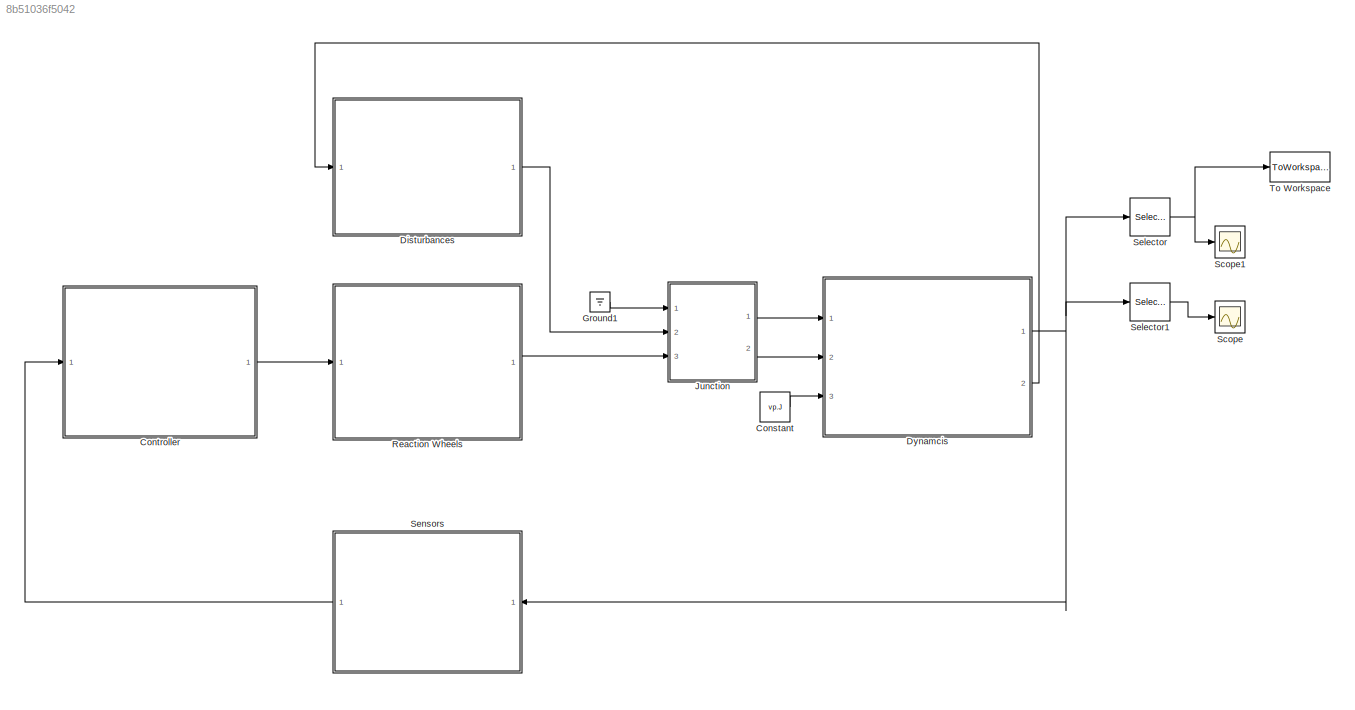
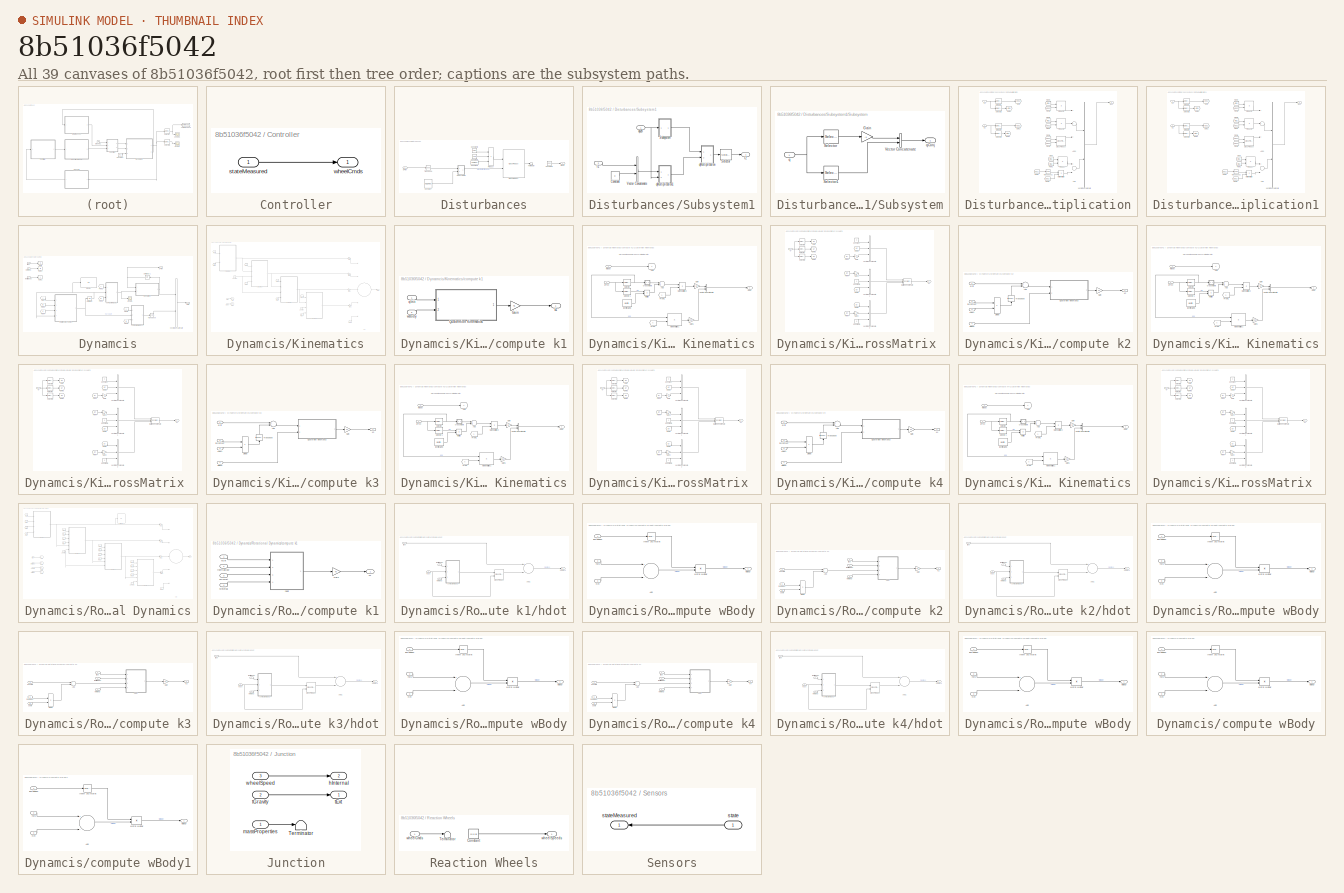
[diagram: thumbnail index - all 39 canvases of the model, root first then tree order]
MODEL slx_8b51036f5042
KIND model
CONFIG AbsTol = auto
CONFIG EnableMultiTasking = off
CONFIG FixedStep = auto
CONFIG MaxStep = auto
CONFIG MinStep = auto
CONFIG RelTol = 1e-3
CONFIG SampleTimeConstraint = Unconstrained
CONFIG Solver = VariableStepAuto
CONFIG SolverName = VariableStepAuto
CONFIG StartTime = 0.0
CONFIG StopTime = 10.0
BLOCK [Constant] Constant
  Value = vp.J
BLOCK [SubSystem] Controller
  Ports = [1, 1]
  RequestExecContextInheritance = off
BLOCK [Inport] Controller/stateMeasured
  IconDisplay = Port number
BLOCK [Outport] Controller/wheelCmds
  IconDisplay = Port number
BLOCK [SubSystem] Disturbances
  Ports = [1, 1]
  RequestExecContextInheritance = off
BLOCK [Constant] Disturbances/Constant
  Value = vp.gVect
BLOCK [Constant] Disturbances/Constant1
  Value = vp.mass
BLOCK [Constant] Disturbances/Constant2
  Value = -vp.g
BLOCK [Constant] Disturbances/Constant3
  Value = vp.r32
BLOCK [Constant] Disturbances/Constant4
  Value = [0 0 0]
BLOCK [Reference] Disturbances/Cross Product  REF=vrlib/Utilities/Cross Product
  Ports = [2, 1]
  SourceBlock = vrlib/Utilities/Cross Product
  SourceProductBaseCode = VR
  SourceProductName = Simulink 3D Animation
  SourceType = Cross Product
BLOCK [Product] Disturbances/Product
  InputSameDT = off
  Inputs = 3
  OutDataTypeStr = Inherit: Inherit via internal rule
  Ports = [3, 1]
  RndMeth = Floor
  SaturateOnIntegerOverflow = off
BLOCK [SubSystem] Disturbances/Subsystem1
  Ports = [2, 1]
  RequestExecContextInheritance = off
BLOCK [Constant] Disturbances/Subsystem1/Constant
  Value = 0
BLOCK [Selector] Disturbances/Subsystem1/Selector
  IndexOptions = Index vector (dialog)
  Indices = [1:3]
  InputPortWidth = 4
  OutputSizes = 1
  Ports = [1, 1]
BLOCK [SubSystem] Disturbances/Subsystem1/Subsystem
  Ports = [1, 1]
  RequestExecContextInheritance = off
BLOCK [Gain] Disturbances/Subsystem1/Subsystem/Gain
  Gain = -1
  OutDataTypeStr = Inherit: Inherit via internal rule
  ParamDataTypeStr = Inherit: Inherit via internal rule
  SaturateOnIntegerOverflow = off
BLOCK [Selector] Disturbances/Subsystem1/Subsystem/Selector
  IndexOptions = Index vector (dialog)
  Indices = [1:3]
  InputPortWidth = 4
  OutputSizes = 1
  Ports = [1, 1]
BLOCK [Selector] Disturbances/Subsystem1/Subsystem/Selector1
  IndexOptions = Index vector (dialog)
  Indices = 4
  InputPortWidth = 4
  OutputSizes = 1
  Ports = [1, 1]
BLOCK [Concatenate] Disturbances/Subsystem1/Subsystem/Vector Concatenate
  Ports = [2, 1]
BLOCK [Inport] Disturbances/Subsystem1/Subsystem/q
  IconDisplay = Port number
BLOCK [Outport] Disturbances/Subsystem1/Subsystem/qConj
  IconDisplay = Port number
BLOCK [Concatenate] Disturbances/Subsystem1/Vector Concatenate
  Ports = [2, 1]
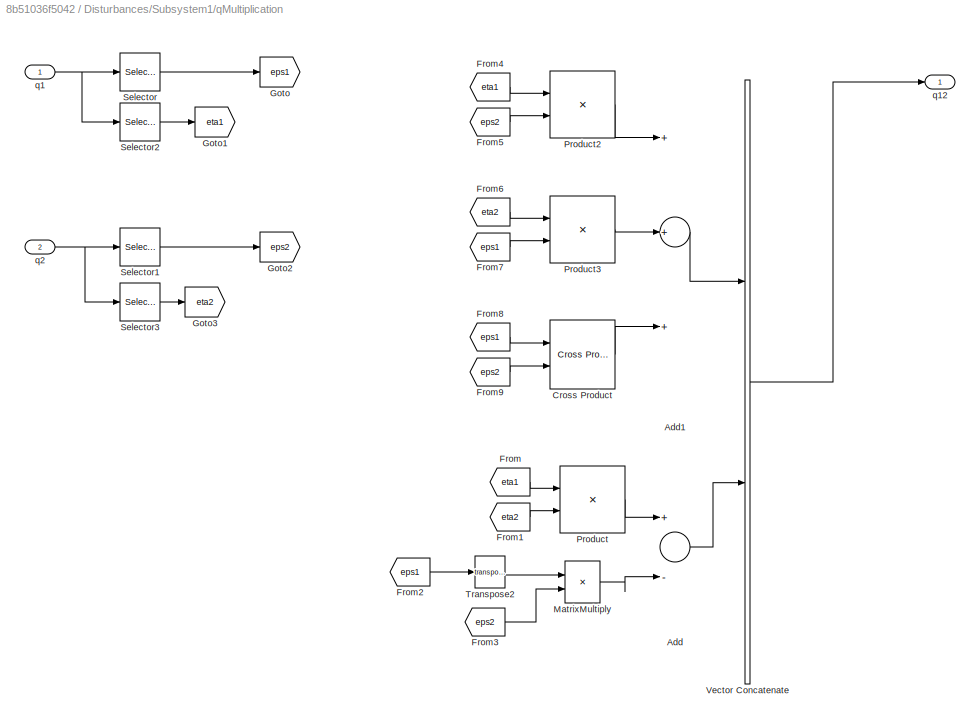
BLOCK [SubSystem] Disturbances/Subsystem1/qMultiplication
  Ports = [2, 1]
  RequestExecContextInheritance = off
BLOCK [Sum] Disturbances/Subsystem1/qMultiplication/Add
  InputSameDT = off
  Inputs = +-
  OutDataTypeStr = Inherit: Inherit via internal rule
  Ports = [2, 1]
  SaturateOnIntegerOverflow = off
BLOCK [Sum] Disturbances/Subsystem1/qMultiplication/Add1
  InputSameDT = off
  Inputs = +++
  OutDataTypeStr = Inherit: Inherit via internal rule
  Ports = [3, 1]
  SaturateOnIntegerOverflow = off
BLOCK [Reference] Disturbances/Subsystem1/qMultiplication/Cross Product  REF=vrlib/Utilities/Cross Product
  Ports = [2, 1]
  SourceBlock = vrlib/Utilities/Cross Product
  SourceProductBaseCode = VR
  SourceProductName = Simulink 3D Animation
  SourceType = Cross Product
BLOCK [From] Disturbances/Subsystem1/qMultiplication/From
  GotoTag = eta1
BLOCK [From] Disturbances/Subsystem1/qMultiplication/From1
  GotoTag = eta2
BLOCK [From] Disturbances/Subsystem1/qMultiplication/From2
  GotoTag = eps1
BLOCK [From] Disturbances/Subsystem1/qMultiplication/From3
  GotoTag = eps2
BLOCK [From] Disturbances/Subsystem1/qMultiplication/From4
  GotoTag = eta1
BLOCK [From] Disturbances/Subsystem1/qMultiplication/From5
  GotoTag = eps2
BLOCK [From] Disturbances/Subsystem1/qMultiplication/From6
  GotoTag = eta2
BLOCK [From] Disturbances/Subsystem1/qMultiplication/From7
  GotoTag = eps1
BLOCK [From] Disturbances/Subsystem1/qMultiplication/From8
  GotoTag = eps1
BLOCK [From] Disturbances/Subsystem1/qMultiplication/From9
  GotoTag = eps2
BLOCK [Goto] Disturbances/Subsystem1/qMultiplication/Goto
  GotoTag = eps1
BLOCK [Goto] Disturbances/Subsystem1/qMultiplication/Goto1
  GotoTag = eta1
BLOCK [Goto] Disturbances/Subsystem1/qMultiplication/Goto2
  GotoTag = eps2
BLOCK [Goto] Disturbances/Subsystem1/qMultiplication/Goto3
  GotoTag = eta2
BLOCK [Product] Disturbances/Subsystem1/qMultiplication/MatrixMultiply
  InputSameDT = off
  Multiplication = Matrix(*)
  OutDataTypeStr = Inherit: Inherit via internal rule
  Ports = [2, 1]
  RndMeth = Floor
  SaturateOnIntegerOverflow = off
BLOCK [Product] Disturbances/Subsystem1/qMultiplication/Product
  InputSameDT = off
  OutDataTypeStr = Inherit: Inherit via internal rule
  Ports = [2, 1]
  RndMeth = Floor
  SaturateOnIntegerOverflow = off
BLOCK [Product] Disturbances/Subsystem1/qMultiplication/Product2
  InputSameDT = off
  OutDataTypeStr = Inherit: Inherit via internal rule
  Ports = [2, 1]
  RndMeth = Floor
  SaturateOnIntegerOverflow = off
BLOCK [Product] Disturbances/Subsystem1/qMultiplication/Product3
  InputSameDT = off
  OutDataTypeStr = Inherit: Inherit via internal rule
  Ports = [2, 1]
  RndMeth = Floor
  SaturateOnIntegerOverflow = off
BLOCK [Selector] Disturbances/Subsystem1/qMultiplication/Selector
  IndexOptions = Index vector (dialog)
  Indices = [1:3]
  InputPortWidth = 4
  OutputSizes = 1
  Ports = [1, 1]
BLOCK [Selector] Disturbances/Subsystem1/qMultiplication/Selector1
  IndexOptions = Index vector (dialog)
  Indices = [1:3]
  InputPortWidth = 4
  OutputSizes = 1
  Ports = [1, 1]
BLOCK [Selector] Disturbances/Subsystem1/qMultiplication/Selector2
  IndexOptions = Index vector (dialog)
  Indices = 4
  InputPortWidth = 4
  OutputSizes = 1
  Ports = [1, 1]
BLOCK [Selector] Disturbances/Subsystem1/qMultiplication/Selector3
  IndexOptions = Index vector (dialog)
  Indices = 4
  InputPortWidth = 4
  OutputSizes = 1
  Ports = [1, 1]
BLOCK [Math] Disturbances/Subsystem1/qMultiplication/Transpose2
  Operator = transpose
  Ports = [1, 1]
BLOCK [Concatenate] Disturbances/Subsystem1/qMultiplication/Vector Concatenate
  Ports = [2, 1]
BLOCK [Inport] Disturbances/Subsystem1/qMultiplication/q1
  IconDisplay = Port number
BLOCK [Outport] Disturbances/Subsystem1/qMultiplication/q12
  IconDisplay = Port number
BLOCK [Inport] Disturbances/Subsystem1/qMultiplication/q2
  IconDisplay = Port number
  Port = 2
BLOCK [SubSystem] Disturbances/Subsystem1/qMultiplication1
  Ports = [2, 1]
  RequestExecContextInheritance = off
BLOCK [Sum] Disturbances/Subsystem1/qMultiplication1/Add
  InputSameDT = off
  Inputs = +-
  OutDataTypeStr = Inherit: Inherit via internal rule
  Ports = [2, 1]
  SaturateOnIntegerOverflow = off
BLOCK [Sum] Disturbances/Subsystem1/qMultiplication1/Add1
  InputSameDT = off
  Inputs = +++
  OutDataTypeStr = Inherit: Inherit via internal rule
  Ports = [3, 1]
  SaturateOnIntegerOverflow = off
BLOCK [Reference] Disturbances/Subsystem1/qMultiplication1/Cross Product  REF=vrlib/Utilities/Cross Product
  Ports = [2, 1]
  SourceBlock = vrlib/Utilities/Cross Product
  SourceProductBaseCode = VR
  SourceProductName = Simulink 3D Animation
  SourceType = Cross Product
BLOCK [From] Disturbances/Subsystem1/qMultiplication1/From
  GotoTag = eta1
BLOCK [From] Disturbances/Subsystem1/qMultiplication1/From1
  GotoTag = eta2
BLOCK [From] Disturbances/Subsystem1/qMultiplication1/From2
  GotoTag = eps1
BLOCK [From] Disturbances/Subsystem1/qMultiplication1/From3
  GotoTag = eps2
BLOCK [From] Disturbances/Subsystem1/qMultiplication1/From4
  GotoTag = eta1
BLOCK [From] Disturbances/Subsystem1/qMultiplication1/From5
  GotoTag = eps2
BLOCK [From] Disturbances/Subsystem1/qMultiplication1/From6
  GotoTag = eta2
BLOCK [From] Disturbances/Subsystem1/qMultiplication1/From7
  GotoTag = eps1
BLOCK [From] Disturbances/Subsystem1/qMultiplication1/From8
  GotoTag = eps1
BLOCK [From] Disturbances/Subsystem1/qMultiplication1/From9
  GotoTag = eps2
BLOCK [Goto] Disturbances/Subsystem1/qMultiplication1/Goto
  GotoTag = eps1
BLOCK [Goto] Disturbances/Subsystem1/qMultiplication1/Goto1
  GotoTag = eta1
BLOCK [Goto] Disturbances/Subsystem1/qMultiplication1/Goto2
  GotoTag = eps2
BLOCK [Goto] Disturbances/Subsystem1/qMultiplication1/Goto3
  GotoTag = eta2
BLOCK [Product] Disturbances/Subsystem1/qMultiplication1/MatrixMultiply
  InputSameDT = off
  Multiplication = Matrix(*)
  OutDataTypeStr = Inherit: Inherit via internal rule
  Ports = [2, 1]
  RndMeth = Floor
  SaturateOnIntegerOverflow = off
BLOCK [Product] Disturbances/Subsystem1/qMultiplication1/Product
  InputSameDT = off
  OutDataTypeStr = Inherit: Inherit via internal rule
  Ports = [2, 1]
  RndMeth = Floor
  SaturateOnIntegerOverflow = off
BLOCK [Product] Disturbances/Subsystem1/qMultiplication1/Product2
  InputSameDT = off
  OutDataTypeStr = Inherit: Inherit via internal rule
  Ports = [2, 1]
  RndMeth = Floor
  SaturateOnIntegerOverflow = off
BLOCK [Product] Disturbances/Subsystem1/qMultiplication1/Product3
  InputSameDT = off
  OutDataTypeStr = Inherit: Inherit via internal rule
  Ports = [2, 1]
  RndMeth = Floor
  SaturateOnIntegerOverflow = off
BLOCK [Selector] Disturbances/Subsystem1/qMultiplication1/Selector
  IndexOptions = Index vector (dialog)
  Indices = [1:3]
  InputPortWidth = 4
  OutputSizes = 1
  Ports = [1, 1]
BLOCK [Selector] Disturbances/Subsystem1/qMultiplication1/Selector1
  IndexOptions = Index vector (dialog)
  Indices = [1:3]
  InputPortWidth = 4
  OutputSizes = 1
  Ports = [1, 1]
BLOCK [Selector] Disturbances/Subsystem1/qMultiplication1/Selector2
  IndexOptions = Index vector (dialog)
  Indices = 4
  InputPortWidth = 4
  OutputSizes = 1
  Ports = [1, 1]
BLOCK [Selector] Disturbances/Subsystem1/qMultiplication1/Selector3
  IndexOptions = Index vector (dialog)
  Indices = 4
  InputPortWidth = 4
  OutputSizes = 1
  Ports = [1, 1]
BLOCK [Math] Disturbances/Subsystem1/qMultiplication1/Transpose2
  Operator = transpose
  Ports = [1, 1]
BLOCK [Concatenate] Disturbances/Subsystem1/qMultiplication1/Vector Concatenate
  Ports = [2, 1]
BLOCK [Inport] Disturbances/Subsystem1/qMultiplication1/q1
  IconDisplay = Port number
BLOCK [Outport] Disturbances/Subsystem1/qMultiplication1/q12
  IconDisplay = Port number
BLOCK [Inport] Disturbances/Subsystem1/qMultiplication1/q2
  IconDisplay = Port number
  Port = 2
BLOCK [Inport] Disturbances/Subsystem1/qa2b
  IconDisplay = Port number
BLOCK [Inport] Disturbances/Subsystem1/r1
  IconDisplay = Port number
  Port = 2
BLOCK [Outport] Disturbances/Subsystem1/r2
  IconDisplay = Port number
BLOCK [Terminator] Disturbances/Terminator
BLOCK [Math] Disturbances/Transpose
  Operator = transpose
  Ports = [1, 1]
BLOCK [Inport] Disturbances/qPrev
  IconDisplay = Port number
BLOCK [Outport] Disturbances/tGravity
  IconDisplay = Port number
BLOCK [SubSystem] Dynamcis
  Ports = [3, 2]
  RequestExecContextInheritance = off
BLOCK [Display] Dynamcis/Display
  Decimation = 1
  Ports = [1]
BLOCK [From] Dynamcis/From
BLOCK [From] Dynamcis/From1
  GotoTag = B
BLOCK [From] Dynamcis/From2
BLOCK [From] Dynamcis/From3
  GotoTag = B
BLOCK [From] Dynamcis/From4
  GotoTag = C
BLOCK [From] Dynamcis/From5
BLOCK [From] Dynamcis/From6
  GotoTag = B
BLOCK [Goto] Dynamcis/Goto
  GotoTag = C
BLOCK [Goto] Dynamcis/Goto1
  GotoTag = B
BLOCK [Goto] Dynamcis/Goto2
BLOCK [SubSystem] Dynamcis/Kinematics
  Ports = [2, 1]
  RequestExecContextInheritance = off
BLOCK [Sum] Dynamcis/Kinematics/Add
  InputSameDT = off
  Inputs = +++++
  OutDataTypeStr = Inherit: Inherit via internal rule
  Ports = [5, 1]
  SaturateOnIntegerOverflow = off
BLOCK [Constant] Dynamcis/Kinematics/Constant
BLOCK [Constant] Dynamcis/Kinematics/Constant1
  Value = 2
BLOCK [From] Dynamcis/Kinematics/From
BLOCK [From] Dynamcis/Kinematics/From1
  GotoTag = B
BLOCK [From] Dynamcis/Kinematics/From16
BLOCK [From] Dynamcis/Kinematics/From2
BLOCK [From] Dynamcis/Kinematics/From3
BLOCK [From] Dynamcis/Kinematics/From4
BLOCK [From] Dynamcis/Kinematics/From5
  GotoTag = B
BLOCK [From] Dynamcis/Kinematics/From6
  GotoTag = B
BLOCK [From] Dynamcis/Kinematics/From7
  GotoTag = B
BLOCK [Gain] Dynamcis/Kinematics/Gain
  Gain = 1/6
  OutDataTypeStr = Inherit: Inherit via internal rule
  ParamDataTypeStr = Inherit: Inherit via internal rule
  SaturateOnIntegerOverflow = off
BLOCK [Gain] Dynamcis/Kinematics/Gain1
  Gain = 1/3
  OutDataTypeStr = Inherit: Inherit via internal rule
  ParamDataTypeStr = Inherit: Inherit via internal rule
  SaturateOnIntegerOverflow = off
BLOCK [Gain] Dynamcis/Kinematics/Gain2
  Gain = 1/3
  OutDataTypeStr = Inherit: Inherit via internal rule
  ParamDataTypeStr = Inherit: Inherit via internal rule
  SaturateOnIntegerOverflow = off
BLOCK [Gain] Dynamcis/Kinematics/Gain3
  Gain = 1/6
  OutDataTypeStr = Inherit: Inherit via internal rule
  ParamDataTypeStr = Inherit: Inherit via internal rule
  SaturateOnIntegerOverflow = off
BLOCK [Goto] Dynamcis/Kinematics/Goto
BLOCK [Goto] Dynamcis/Kinematics/Goto1
  GotoTag = B
BLOCK [SubSystem] Dynamcis/Kinematics/compute k1
  Ports = [2, 1]
  RequestExecContextInheritance = off
BLOCK [Gain] Dynamcis/Kinematics/compute k1/Gain
  Gain = Ts
  OutDataTypeStr = Inherit: Inherit via internal rule
  ParamDataTypeStr = Inherit: Inherit via internal rule
  SaturateOnIntegerOverflow = off
BLOCK [SubSystem] Dynamcis/Kinematics/compute k1/Quaternion Kinematics
  Ports = [2, 1]
  RequestExecContextInheritance = off
BLOCK [Sum] Dynamcis/Kinematics/compute k1/Quaternion Kinematics/Add
  InputSameDT = off
  OutDataTypeStr = Inherit: Inherit via internal rule
  Ports = [2, 1]
  SaturateOnIntegerOverflow = off
BLOCK [From] Dynamcis/Kinematics/compute k1/Quaternion Kinematics/From
BLOCK [From] Dynamcis/Kinematics/compute k1/Quaternion Kinematics/From1
BLOCK [Gain] Dynamcis/Kinematics/compute k1/Quaternion Kinematics/Gain
  Gain = 1/2
  OutDataTypeStr = Inherit: Inherit via internal rule
  ParamDataTypeStr = Inherit: Inherit via internal rule
  SaturateOnIntegerOverflow = off
BLOCK [Gain] Dynamcis/Kinematics/compute k1/Quaternion Kinematics/Gain1
  Gain = -1/2
  OutDataTypeStr = Inherit: Inherit via internal rule
  ParamDataTypeStr = Inherit: Inherit via internal rule
  SaturateOnIntegerOverflow = off
BLOCK [Goto] Dynamcis/Kinematics/compute k1/Quaternion Kinematics/Goto
BLOCK [Reference] Dynamcis/Kinematics/compute k1/Quaternion Kinematics/Identity Matrix  REF=dspmtrx3/Identity Matrix
  Ports = [0, 1]
  SourceBlock = dspmtrx3/Identity Matrix
  SourceProductBaseCode = DS
  SourceProductName = DSP System Toolbox
  SourceType = Identity Matrix
BLOCK [Product] Dynamcis/Kinematics/compute k1/Quaternion Kinematics/MatrixMultiply1
  InputSameDT = off
  Multiplication = Matrix(*)
  OutDataTypeStr = Inherit: Inherit via internal rule
  Ports = [2, 1]
  RndMeth = Floor
  SaturateOnIntegerOverflow = off
BLOCK [Product] Dynamcis/Kinematics/compute k1/Quaternion Kinematics/MatrixMultiply2
  InputSameDT = off
  Multiplication = Matrix(*)
  OutDataTypeStr = Inherit: Inherit via internal rule
  Ports = [2, 1]
  RndMeth = Floor
  SaturateOnIntegerOverflow = off
BLOCK [Product] Dynamcis/Kinematics/compute k1/Quaternion Kinematics/Multiply
  InputSameDT = off
  OutDataTypeStr = Inherit: Inherit via internal rule
  Ports = [2, 1]
  RndMeth = Floor
  SaturateOnIntegerOverflow = off
BLOCK [Selector] Dynamcis/Kinematics/compute k1/Quaternion Kinematics/Selector
  IndexOptions = Index vector (dialog)
  Indices = [1:3]
  InputPortWidth = 4
  OutputSizes = 1
  Ports = [1, 1]
BLOCK [Selector] Dynamcis/Kinematics/compute k1/Quaternion Kinematics/Selector1
  IndexOptions = Index vector (dialog)
  Indices = 4
  InputPortWidth = 4
  OutputSizes = 1
  Ports = [1, 1]
BLOCK [Concatenate] Dynamcis/Kinematics/compute k1/Quaternion Kinematics/Vector Concatenate
  Ports = [2, 1]
BLOCK [SubSystem] Dynamcis/Kinematics/compute k1/Quaternion Kinematics/crossMatrix 
  Ports = [1, 1]
  RequestExecContextInheritance = off
BLOCK [Constant] Dynamcis/Kinematics/compute k1/Quaternion Kinematics/crossMatrix /Constant
  Value = 0
BLOCK [Constant] Dynamcis/Kinematics/compute k1/Quaternion Kinematics/crossMatrix /Constant1
  Value = 0
BLOCK [Constant] Dynamcis/Kinematics/compute k1/Quaternion Kinematics/crossMatrix /Constant2
  Value = 0
BLOCK [From] Dynamcis/Kinematics/compute k1/Quaternion Kinematics/crossMatrix /From1
  GotoTag = ay
BLOCK [From] Dynamcis/Kinematics/compute k1/Quaternion Kinematics/crossMatrix /From3
  GotoTag = az
BLOCK [From] Dynamcis/Kinematics/compute k1/Quaternion Kinematics/crossMatrix /From4
  GotoTag = az
BLOCK [From] Dynamcis/Kinematics/compute k1/Quaternion Kinematics/crossMatrix /From5
  GotoTag = ax
BLOCK [From] Dynamcis/Kinematics/compute k1/Quaternion Kinematics/crossMatrix /From6
  GotoTag = ay
BLOCK [From] Dynamcis/Kinematics/compute k1/Quaternion Kinematics/crossMatrix /From7
  GotoTag = ax
BLOCK [Gain] Dynamcis/Kinematics/compute k1/Quaternion Kinematics/crossMatrix /Gain
  Gain = -1
  OutDataTypeStr = Inherit: Inherit via internal rule
  ParamDataTypeStr = Inherit: Inherit via internal rule
  SaturateOnIntegerOverflow = off
BLOCK [Gain] Dynamcis/Kinematics/compute k1/Quaternion Kinematics/crossMatrix /Gain1
  Gain = -1
  OutDataTypeStr = Inherit: Inherit via internal rule
  ParamDataTypeStr = Inherit: Inherit via internal rule
  SaturateOnIntegerOverflow = off
BLOCK [Gain] Dynamcis/Kinematics/compute k1/Quaternion Kinematics/crossMatrix /Gain2
  Gain = -1
  OutDataTypeStr = Inherit: Inherit via internal rule
  ParamDataTypeStr = Inherit: Inherit via internal rule
  SaturateOnIntegerOverflow = off
BLOCK [Goto] Dynamcis/Kinematics/compute k1/Quaternion Kinematics/crossMatrix /Goto
  GotoTag = ax
BLOCK [Goto] Dynamcis/Kinematics/compute k1/Quaternion Kinematics/crossMatrix /Goto1
  GotoTag = ay
BLOCK [Goto] Dynamcis/Kinematics/compute k1/Quaternion Kinematics/crossMatrix /Goto2
  GotoTag = az
BLOCK [Concatenate] Dynamcis/Kinematics/compute k1/Quaternion Kinematics/crossMatrix /Matrix Concatenate
  ConcatenateDimension = 2
  Mode = Multidimensional array
  NumInputs = 3
  Ports = [3, 1]
BLOCK [Selector] Dynamcis/Kinematics/compute k1/Quaternion Kinematics/crossMatrix /Selector
  IndexOptions = Index vector (dialog)
  Indices = 2
  InputPortWidth = 3
  OutputSizes = 1
  Ports = [1, 1]
BLOCK [Selector] Dynamcis/Kinematics/compute k1/Quaternion Kinematics/crossMatrix /Selector1
  IndexOptions = Index vector (dialog)
  Indices = 1
  InputPortWidth = 3
  OutputSizes = 1
  Ports = [1, 1]
BLOCK [Selector] Dynamcis/Kinematics/compute k1/Quaternion Kinematics/crossMatrix /Selector2
  IndexOptions = Index vector (dialog)
  Indices = 3
  InputPortWidth = 3
  OutputSizes = 1
  Ports = [1, 1]
BLOCK [Concatenate] Dynamcis/Kinematics/compute k1/Quaternion Kinematics/crossMatrix /Vector Concatenate
  NumInputs = 3
  Ports = [3, 1]
BLOCK [Concatenate] Dynamcis/Kinematics/compute k1/Quaternion Kinematics/crossMatrix /Vector Concatenate1
  NumInputs = 3
  Ports = [3, 1]
BLOCK [Concatenate] Dynamcis/Kinematics/compute k1/Quaternion Kinematics/crossMatrix /Vector Concatenate2
  NumInputs = 3
  Ports = [3, 1]
BLOCK [Inport] Dynamcis/Kinematics/compute k1/Quaternion Kinematics/crossMatrix /a
  IconDisplay = Port number
BLOCK [Outport] Dynamcis/Kinematics/compute k1/Quaternion Kinematics/crossMatrix /aX
  IconDisplay = Port number
BLOCK [Outport] Dynamcis/Kinematics/compute k1/Quaternion Kinematics/qDot
  IconDisplay = Port number
BLOCK [Inport] Dynamcis/Kinematics/compute k1/Quaternion Kinematics/qPrev
  IconDisplay = Port number
BLOCK [Inport] Dynamcis/Kinematics/compute k1/Quaternion Kinematics/wBody
  IconDisplay = Port number
  Port = 2
BLOCK [Outport] Dynamcis/Kinematics/compute k1/k1
  IconDisplay = Port number
BLOCK [Inport] Dynamcis/Kinematics/compute k1/qInit
  IconDisplay = Port number
BLOCK [Inport] Dynamcis/Kinematics/compute k1/wBody
  IconDisplay = Port number
  Port = 2
BLOCK [SubSystem] Dynamcis/Kinematics/compute k2
  Ports = [4, 1]
  RequestExecContextInheritance = off
BLOCK [Sum] Dynamcis/Kinematics/compute k2/Add
  InputSameDT = off
  OutDataTypeStr = Inherit: Inherit via internal rule
  Ports = [2, 1]
  SaturateOnIntegerOverflow = off
BLOCK [Product] Dynamcis/Kinematics/compute k2/Divide
  InputSameDT = off
  Inputs = */
  OutDataTypeStr = Inherit: Inherit via internal rule
  Ports = [2, 1]
  RndMeth = Floor
  SaturateOnIntegerOverflow = off
BLOCK [Gain] Dynamcis/Kinematics/compute k2/Gain
  Gain = Ts
  OutDataTypeStr = Inherit: Inherit via internal rule
  ParamDataTypeStr = Inherit: Inherit via internal rule
  SaturateOnIntegerOverflow = off
BLOCK [SubSystem] Dynamcis/Kinematics/compute k2/Quaternion Kinematics
  Ports = [2, 1]
  RequestExecContextInheritance = off
BLOCK [Sum] Dynamcis/Kinematics/compute k2/Quaternion Kinematics/Add
  InputSameDT = off
  OutDataTypeStr = Inherit: Inherit via internal rule
  Ports = [2, 1]
  SaturateOnIntegerOverflow = off
BLOCK [From] Dynamcis/Kinematics/compute k2/Quaternion Kinematics/From
BLOCK [From] Dynamcis/Kinematics/compute k2/Quaternion Kinematics/From1
BLOCK [Gain] Dynamcis/Kinematics/compute k2/Quaternion Kinematics/Gain
  Gain = 1/2
  OutDataTypeStr = Inherit: Inherit via internal rule
  ParamDataTypeStr = Inherit: Inherit via internal rule
  SaturateOnIntegerOverflow = off
BLOCK [Gain] Dynamcis/Kinematics/compute k2/Quaternion Kinematics/Gain1
  Gain = -1/2
  OutDataTypeStr = Inherit: Inherit via internal rule
  ParamDataTypeStr = Inherit: Inherit via internal rule
  SaturateOnIntegerOverflow = off
BLOCK [Goto] Dynamcis/Kinematics/compute k2/Quaternion Kinematics/Goto
BLOCK [Reference] Dynamcis/Kinematics/compute k2/Quaternion Kinematics/Identity Matrix  REF=dspmtrx3/Identity Matrix
  Ports = [0, 1]
  SourceBlock = dspmtrx3/Identity Matrix
  SourceProductBaseCode = DS
  SourceProductName = DSP System Toolbox
  SourceType = Identity Matrix
BLOCK [Product] Dynamcis/Kinematics/compute k2/Quaternion Kinematics/MatrixMultiply1
  InputSameDT = off
  Multiplication = Matrix(*)
  OutDataTypeStr = Inherit: Inherit via internal rule
  Ports = [2, 1]
  RndMeth = Floor
  SaturateOnIntegerOverflow = off
BLOCK [Product] Dynamcis/Kinematics/compute k2/Quaternion Kinematics/MatrixMultiply2
  InputSameDT = off
  Multiplication = Matrix(*)
  OutDataTypeStr = Inherit: Inherit via internal rule
  Ports = [2, 1]
  RndMeth = Floor
  SaturateOnIntegerOverflow = off
BLOCK [Product] Dynamcis/Kinematics/compute k2/Quaternion Kinematics/Multiply
  InputSameDT = off
  OutDataTypeStr = Inherit: Inherit via internal rule
  Ports = [2, 1]
  RndMeth = Floor
  SaturateOnIntegerOverflow = off
BLOCK [Selector] Dynamcis/Kinematics/compute k2/Quaternion Kinematics/Selector
  IndexOptions = Index vector (dialog)
  Indices = [1:3]
  InputPortWidth = 4
  OutputSizes = 1
  Ports = [1, 1]
BLOCK [Selector] Dynamcis/Kinematics/compute k2/Quaternion Kinematics/Selector1
  IndexOptions = Index vector (dialog)
  Indices = 4
  InputPortWidth = 4
  OutputSizes = 1
  Ports = [1, 1]
BLOCK [Concatenate] Dynamcis/Kinematics/compute k2/Quaternion Kinematics/Vector Concatenate
  Ports = [2, 1]
BLOCK [SubSystem] Dynamcis/Kinematics/compute k2/Quaternion Kinematics/crossMatrix 
  Ports = [1, 1]
  RequestExecContextInheritance = off
BLOCK [Constant] Dynamcis/Kinematics/compute k2/Quaternion Kinematics/crossMatrix /Constant
  Value = 0
BLOCK [Constant] Dynamcis/Kinematics/compute k2/Quaternion Kinematics/crossMatrix /Constant1
  Value = 0
BLOCK [Constant] Dynamcis/Kinematics/compute k2/Quaternion Kinematics/crossMatrix /Constant2
  Value = 0
BLOCK [From] Dynamcis/Kinematics/compute k2/Quaternion Kinematics/crossMatrix /From1
  GotoTag = ay
BLOCK [From] Dynamcis/Kinematics/compute k2/Quaternion Kinematics/crossMatrix /From3
  GotoTag = az
BLOCK [From] Dynamcis/Kinematics/compute k2/Quaternion Kinematics/crossMatrix /From4
  GotoTag = az
BLOCK [From] Dynamcis/Kinematics/compute k2/Quaternion Kinematics/crossMatrix /From5
  GotoTag = ax
BLOCK [From] Dynamcis/Kinematics/compute k2/Quaternion Kinematics/crossMatrix /From6
  GotoTag = ay
BLOCK [From] Dynamcis/Kinematics/compute k2/Quaternion Kinematics/crossMatrix /From7
  GotoTag = ax
BLOCK [Gain] Dynamcis/Kinematics/compute k2/Quaternion Kinematics/crossMatrix /Gain
  Gain = -1
  OutDataTypeStr = Inherit: Inherit via internal rule
  ParamDataTypeStr = Inherit: Inherit via internal rule
  SaturateOnIntegerOverflow = off
BLOCK [Gain] Dynamcis/Kinematics/compute k2/Quaternion Kinematics/crossMatrix /Gain1
  Gain = -1
  OutDataTypeStr = Inherit: Inherit via internal rule
  ParamDataTypeStr = Inherit: Inherit via internal rule
  SaturateOnIntegerOverflow = off
BLOCK [Gain] Dynamcis/Kinematics/compute k2/Quaternion Kinematics/crossMatrix /Gain2
  Gain = -1
  OutDataTypeStr = Inherit: Inherit via internal rule
  ParamDataTypeStr = Inherit: Inherit via internal rule
  SaturateOnIntegerOverflow = off
BLOCK [Goto] Dynamcis/Kinematics/compute k2/Quaternion Kinematics/crossMatrix /Goto
  GotoTag = ax
BLOCK [Goto] Dynamcis/Kinematics/compute k2/Quaternion Kinematics/crossMatrix /Goto1
  GotoTag = ay
BLOCK [Goto] Dynamcis/Kinematics/compute k2/Quaternion Kinematics/crossMatrix /Goto2
  GotoTag = az
BLOCK [Concatenate] Dynamcis/Kinematics/compute k2/Quaternion Kinematics/crossMatrix /Matrix Concatenate
  ConcatenateDimension = 2
  Mode = Multidimensional array
  NumInputs = 3
  Ports = [3, 1]
BLOCK [Selector] Dynamcis/Kinematics/compute k2/Quaternion Kinematics/crossMatrix /Selector
  IndexOptions = Index vector (dialog)
  Indices = 2
  InputPortWidth = 3
  OutputSizes = 1
  Ports = [1, 1]
BLOCK [Selector] Dynamcis/Kinematics/compute k2/Quaternion Kinematics/crossMatrix /Selector1
  IndexOptions = Index vector (dialog)
  Indices = 1
  InputPortWidth = 3
  OutputSizes = 1
  Ports = [1, 1]
BLOCK [Selector] Dynamcis/Kinematics/compute k2/Quaternion Kinematics/crossMatrix /Selector2
  IndexOptions = Index vector (dialog)
  Indices = 3
  InputPortWidth = 3
  OutputSizes = 1
  Ports = [1, 1]
BLOCK [Concatenate] Dynamcis/Kinematics/compute k2/Quaternion Kinematics/crossMatrix /Vector Concatenate
  NumInputs = 3
  Ports = [3, 1]
BLOCK [Concatenate] Dynamcis/Kinematics/compute k2/Quaternion Kinematics/crossMatrix /Vector Concatenate1
  NumInputs = 3
  Ports = [3, 1]
BLOCK [Concatenate] Dynamcis/Kinematics/compute k2/Quaternion Kinematics/crossMatrix /Vector Concatenate2
  NumInputs = 3
  Ports = [3, 1]
BLOCK [Inport] Dynamcis/Kinematics/compute k2/Quaternion Kinematics/crossMatrix /a
  IconDisplay = Port number
BLOCK [Outport] Dynamcis/Kinematics/compute k2/Quaternion Kinematics/crossMatrix /aX
  IconDisplay = Port number
BLOCK [Outport] Dynamcis/Kinematics/compute k2/Quaternion Kinematics/qDot
  IconDisplay = Port number
BLOCK [Inport] Dynamcis/Kinematics/compute k2/Quaternion Kinematics/qPrev
  IconDisplay = Port number
BLOCK [Inport] Dynamcis/Kinematics/compute k2/Quaternion Kinematics/wBody
  IconDisplay = Port number
  Port = 2
BLOCK [Math] Dynamcis/Kinematics/compute k2/Transpose
  Operator = transpose
  Ports = [1, 1]
BLOCK [Inport] Dynamcis/Kinematics/compute k2/coeff
  IconDisplay = Port number
  Port = 3
BLOCK [Inport] Dynamcis/Kinematics/compute k2/increment
  IconDisplay = Port number
  Port = 2
BLOCK [Outport] Dynamcis/Kinematics/compute k2/k2
  IconDisplay = Port number
BLOCK [Inport] Dynamcis/Kinematics/compute k2/qInit
  IconDisplay = Port number
BLOCK [Inport] Dynamcis/Kinematics/compute k2/wBody
  IconDisplay = Port number
  Port = 4
BLOCK [SubSystem] Dynamcis/Kinematics/compute k3
  Ports = [4, 1]
  RequestExecContextInheritance = off
BLOCK [Sum] Dynamcis/Kinematics/compute k3/Add
  InputSameDT = off
  OutDataTypeStr = Inherit: Inherit via internal rule
  Ports = [2, 1]
  SaturateOnIntegerOverflow = off
BLOCK [Product] Dynamcis/Kinematics/compute k3/Divide
  InputSameDT = off
  Inputs = */
  OutDataTypeStr = Inherit: Inherit via internal rule
  Ports = [2, 1]
  RndMeth = Floor
  SaturateOnIntegerOverflow = off
BLOCK [Gain] Dynamcis/Kinematics/compute k3/Gain
  Gain = Ts
  OutDataTypeStr = Inherit: Inherit via internal rule
  ParamDataTypeStr = Inherit: Inherit via internal rule
  SaturateOnIntegerOverflow = off
BLOCK [SubSystem] Dynamcis/Kinematics/compute k3/Quaternion Kinematics
  Ports = [2, 1]
  RequestExecContextInheritance = off
BLOCK [Sum] Dynamcis/Kinematics/compute k3/Quaternion Kinematics/Add
  InputSameDT = off
  OutDataTypeStr = Inherit: Inherit via internal rule
  Ports = [2, 1]
  SaturateOnIntegerOverflow = off
BLOCK [From] Dynamcis/Kinematics/compute k3/Quaternion Kinematics/From
BLOCK [From] Dynamcis/Kinematics/compute k3/Quaternion Kinematics/From1
BLOCK [Gain] Dynamcis/Kinematics/compute k3/Quaternion Kinematics/Gain
  Gain = 1/2
  OutDataTypeStr = Inherit: Inherit via internal rule
  ParamDataTypeStr = Inherit: Inherit via internal rule
  SaturateOnIntegerOverflow = off
BLOCK [Gain] Dynamcis/Kinematics/compute k3/Quaternion Kinematics/Gain1
  Gain = -1/2
  OutDataTypeStr = Inherit: Inherit via internal rule
  ParamDataTypeStr = Inherit: Inherit via internal rule
  SaturateOnIntegerOverflow = off
BLOCK [Goto] Dynamcis/Kinematics/compute k3/Quaternion Kinematics/Goto
BLOCK [Reference] Dynamcis/Kinematics/compute k3/Quaternion Kinematics/Identity Matrix  REF=dspmtrx3/Identity Matrix
  Ports = [0, 1]
  SourceBlock = dspmtrx3/Identity Matrix
  SourceProductBaseCode = DS
  SourceProductName = DSP System Toolbox
  SourceType = Identity Matrix
BLOCK [Product] Dynamcis/Kinematics/compute k3/Quaternion Kinematics/MatrixMultiply1
  InputSameDT = off
  Multiplication = Matrix(*)
  OutDataTypeStr = Inherit: Inherit via internal rule
  Ports = [2, 1]
  RndMeth = Floor
  SaturateOnIntegerOverflow = off
BLOCK [Product] Dynamcis/Kinematics/compute k3/Quaternion Kinematics/MatrixMultiply2
  InputSameDT = off
  Multiplication = Matrix(*)
  OutDataTypeStr = Inherit: Inherit via internal rule
  Ports = [2, 1]
  RndMeth = Floor
  SaturateOnIntegerOverflow = off
BLOCK [Product] Dynamcis/Kinematics/compute k3/Quaternion Kinematics/Multiply
  InputSameDT = off
  OutDataTypeStr = Inherit: Inherit via internal rule
  Ports = [2, 1]
  RndMeth = Floor
  SaturateOnIntegerOverflow = off
BLOCK [Selector] Dynamcis/Kinematics/compute k3/Quaternion Kinematics/Selector
  IndexOptions = Index vector (dialog)
  Indices = [1:3]
  InputPortWidth = 4
  OutputSizes = 1
  Ports = [1, 1]
BLOCK [Selector] Dynamcis/Kinematics/compute k3/Quaternion Kinematics/Selector1
  IndexOptions = Index vector (dialog)
  Indices = 4
  InputPortWidth = 4
  OutputSizes = 1
  Ports = [1, 1]
BLOCK [Concatenate] Dynamcis/Kinematics/compute k3/Quaternion Kinematics/Vector Concatenate
  Ports = [2, 1]
BLOCK [SubSystem] Dynamcis/Kinematics/compute k3/Quaternion Kinematics/crossMatrix 
  Ports = [1, 1]
  RequestExecContextInheritance = off
BLOCK [Constant] Dynamcis/Kinematics/compute k3/Quaternion Kinematics/crossMatrix /Constant
  Value = 0
BLOCK [Constant] Dynamcis/Kinematics/compute k3/Quaternion Kinematics/crossMatrix /Constant1
  Value = 0
BLOCK [Constant] Dynamcis/Kinematics/compute k3/Quaternion Kinematics/crossMatrix /Constant2
  Value = 0
BLOCK [From] Dynamcis/Kinematics/compute k3/Quaternion Kinematics/crossMatrix /From1
  GotoTag = ay
BLOCK [From] Dynamcis/Kinematics/compute k3/Quaternion Kinematics/crossMatrix /From3
  GotoTag = az
BLOCK [From] Dynamcis/Kinematics/compute k3/Quaternion Kinematics/crossMatrix /From4
  GotoTag = az
BLOCK [From] Dynamcis/Kinematics/compute k3/Quaternion Kinematics/crossMatrix /From5
  GotoTag = ax
BLOCK [From] Dynamcis/Kinematics/compute k3/Quaternion Kinematics/crossMatrix /From6
  GotoTag = ay
BLOCK [From] Dynamcis/Kinematics/compute k3/Quaternion Kinematics/crossMatrix /From7
  GotoTag = ax
BLOCK [Gain] Dynamcis/Kinematics/compute k3/Quaternion Kinematics/crossMatrix /Gain
  Gain = -1
  OutDataTypeStr = Inherit: Inherit via internal rule
  ParamDataTypeStr = Inherit: Inherit via internal rule
  SaturateOnIntegerOverflow = off
BLOCK [Gain] Dynamcis/Kinematics/compute k3/Quaternion Kinematics/crossMatrix /Gain1
  Gain = -1
  OutDataTypeStr = Inherit: Inherit via internal rule
  ParamDataTypeStr = Inherit: Inherit via internal rule
  SaturateOnIntegerOverflow = off
BLOCK [Gain] Dynamcis/Kinematics/compute k3/Quaternion Kinematics/crossMatrix /Gain2
  Gain = -1
  OutDataTypeStr = Inherit: Inherit via internal rule
  ParamDataTypeStr = Inherit: Inherit via internal rule
  SaturateOnIntegerOverflow = off
BLOCK [Goto] Dynamcis/Kinematics/compute k3/Quaternion Kinematics/crossMatrix /Goto
  GotoTag = ax
BLOCK [Goto] Dynamcis/Kinematics/compute k3/Quaternion Kinematics/crossMatrix /Goto1
  GotoTag = ay
BLOCK [Goto] Dynamcis/Kinematics/compute k3/Quaternion Kinematics/crossMatrix /Goto2
  GotoTag = az
BLOCK [Concatenate] Dynamcis/Kinematics/compute k3/Quaternion Kinematics/crossMatrix /Matrix Concatenate
  ConcatenateDimension = 2
  Mode = Multidimensional array
  NumInputs = 3
  Ports = [3, 1]
BLOCK [Selector] Dynamcis/Kinematics/compute k3/Quaternion Kinematics/crossMatrix /Selector
  IndexOptions = Index vector (dialog)
  Indices = 2
  InputPortWidth = 3
  OutputSizes = 1
  Ports = [1, 1]
BLOCK [Selector] Dynamcis/Kinematics/compute k3/Quaternion Kinematics/crossMatrix /Selector1
  IndexOptions = Index vector (dialog)
  Indices = 1
  InputPortWidth = 3
  OutputSizes = 1
  Ports = [1, 1]
BLOCK [Selector] Dynamcis/Kinematics/compute k3/Quaternion Kinematics/crossMatrix /Selector2
  IndexOptions = Index vector (dialog)
  Indices = 3
  InputPortWidth = 3
  OutputSizes = 1
  Ports = [1, 1]
BLOCK [Concatenate] Dynamcis/Kinematics/compute k3/Quaternion Kinematics/crossMatrix /Vector Concatenate
  NumInputs = 3
  Ports = [3, 1]
BLOCK [Concatenate] Dynamcis/Kinematics/compute k3/Quaternion Kinematics/crossMatrix /Vector Concatenate1
  NumInputs = 3
  Ports = [3, 1]
BLOCK [Concatenate] Dynamcis/Kinematics/compute k3/Quaternion Kinematics/crossMatrix /Vector Concatenate2
  NumInputs = 3
  Ports = [3, 1]
BLOCK [Inport] Dynamcis/Kinematics/compute k3/Quaternion Kinematics/crossMatrix /a
  IconDisplay = Port number
BLOCK [Outport] Dynamcis/Kinematics/compute k3/Quaternion Kinematics/crossMatrix /aX
  IconDisplay = Port number
BLOCK [Outport] Dynamcis/Kinematics/compute k3/Quaternion Kinematics/qDot
  IconDisplay = Port number
BLOCK [Inport] Dynamcis/Kinematics/compute k3/Quaternion Kinematics/qPrev
  IconDisplay = Port number
BLOCK [Inport] Dynamcis/Kinematics/compute k3/Quaternion Kinematics/wBody
  IconDisplay = Port number
  Port = 2
BLOCK [Math] Dynamcis/Kinematics/compute k3/Transpose
  Operator = transpose
  Ports = [1, 1]
BLOCK [Inport] Dynamcis/Kinematics/compute k3/coeff
  IconDisplay = Port number
  Port = 3
BLOCK [Inport] Dynamcis/Kinematics/compute k3/increment
  IconDisplay = Port number
  Port = 2
BLOCK [Outport] Dynamcis/Kinematics/compute k3/k3
  IconDisplay = Port number
BLOCK [Inport] Dynamcis/Kinematics/compute k3/qInit
  IconDisplay = Port number
BLOCK [Inport] Dynamcis/Kinematics/compute k3/wBody
  IconDisplay = Port number
  Port = 4
BLOCK [SubSystem] Dynamcis/Kinematics/compute k4
  Ports = [4, 1]
  RequestExecContextInheritance = off
BLOCK [Sum] Dynamcis/Kinematics/compute k4/Add
  InputSameDT = off
  OutDataTypeStr = Inherit: Inherit via internal rule
  Ports = [2, 1]
  SaturateOnIntegerOverflow = off
BLOCK [Product] Dynamcis/Kinematics/compute k4/Divide
  InputSameDT = off
  Inputs = */
  OutDataTypeStr = Inherit: Inherit via internal rule
  Ports = [2, 1]
  RndMeth = Floor
  SaturateOnIntegerOverflow = off
BLOCK [Gain] Dynamcis/Kinematics/compute k4/Gain
  Gain = Ts
  OutDataTypeStr = Inherit: Inherit via internal rule
  ParamDataTypeStr = Inherit: Inherit via internal rule
  SaturateOnIntegerOverflow = off
BLOCK [SubSystem] Dynamcis/Kinematics/compute k4/Quaternion Kinematics
  Ports = [2, 1]
  RequestExecContextInheritance = off
BLOCK [Sum] Dynamcis/Kinematics/compute k4/Quaternion Kinematics/Add
  InputSameDT = off
  OutDataTypeStr = Inherit: Inherit via internal rule
  Ports = [2, 1]
  SaturateOnIntegerOverflow = off
BLOCK [From] Dynamcis/Kinematics/compute k4/Quaternion Kinematics/From
BLOCK [From] Dynamcis/Kinematics/compute k4/Quaternion Kinematics/From1
BLOCK [Gain] Dynamcis/Kinematics/compute k4/Quaternion Kinematics/Gain
  Gain = 1/2
  OutDataTypeStr = Inherit: Inherit via internal rule
  ParamDataTypeStr = Inherit: Inherit via internal rule
  SaturateOnIntegerOverflow = off
BLOCK [Gain] Dynamcis/Kinematics/compute k4/Quaternion Kinematics/Gain1
  Gain = -1/2
  OutDataTypeStr = Inherit: Inherit via internal rule
  ParamDataTypeStr = Inherit: Inherit via internal rule
  SaturateOnIntegerOverflow = off
BLOCK [Goto] Dynamcis/Kinematics/compute k4/Quaternion Kinematics/Goto
BLOCK [Reference] Dynamcis/Kinematics/compute k4/Quaternion Kinematics/Identity Matrix  REF=dspmtrx3/Identity Matrix
  Ports = [0, 1]
  SourceBlock = dspmtrx3/Identity Matrix
  SourceProductBaseCode = DS
  SourceProductName = DSP System Toolbox
  SourceType = Identity Matrix
BLOCK [Product] Dynamcis/Kinematics/compute k4/Quaternion Kinematics/MatrixMultiply1
  InputSameDT = off
  Multiplication = Matrix(*)
  OutDataTypeStr = Inherit: Inherit via internal rule
  Ports = [2, 1]
  RndMeth = Floor
  SaturateOnIntegerOverflow = off
BLOCK [Product] Dynamcis/Kinematics/compute k4/Quaternion Kinematics/MatrixMultiply2
  InputSameDT = off
  Multiplication = Matrix(*)
  OutDataTypeStr = Inherit: Inherit via internal rule
  Ports = [2, 1]
  RndMeth = Floor
  SaturateOnIntegerOverflow = off
BLOCK [Product] Dynamcis/Kinematics/compute k4/Quaternion Kinematics/Multiply
  InputSameDT = off
  OutDataTypeStr = Inherit: Inherit via internal rule
  Ports = [2, 1]
  RndMeth = Floor
  SaturateOnIntegerOverflow = off
BLOCK [Selector] Dynamcis/Kinematics/compute k4/Quaternion Kinematics/Selector
  IndexOptions = Index vector (dialog)
  Indices = [1:3]
  InputPortWidth = 4
  OutputSizes = 1
  Ports = [1, 1]
BLOCK [Selector] Dynamcis/Kinematics/compute k4/Quaternion Kinematics/Selector1
  IndexOptions = Index vector (dialog)
  Indices = 4
  InputPortWidth = 4
  OutputSizes = 1
  Ports = [1, 1]
BLOCK [Concatenate] Dynamcis/Kinematics/compute k4/Quaternion Kinematics/Vector Concatenate
  Ports = [2, 1]
BLOCK [SubSystem] Dynamcis/Kinematics/compute k4/Quaternion Kinematics/crossMatrix 
  Ports = [1, 1]
  RequestExecContextInheritance = off
BLOCK [Constant] Dynamcis/Kinematics/compute k4/Quaternion Kinematics/crossMatrix /Constant
  Value = 0
BLOCK [Constant] Dynamcis/Kinematics/compute k4/Quaternion Kinematics/crossMatrix /Constant1
  Value = 0
BLOCK [Constant] Dynamcis/Kinematics/compute k4/Quaternion Kinematics/crossMatrix /Constant2
  Value = 0
BLOCK [From] Dynamcis/Kinematics/compute k4/Quaternion Kinematics/crossMatrix /From1
  GotoTag = ay
BLOCK [From] Dynamcis/Kinematics/compute k4/Quaternion Kinematics/crossMatrix /From3
  GotoTag = az
BLOCK [From] Dynamcis/Kinematics/compute k4/Quaternion Kinematics/crossMatrix /From4
  GotoTag = az
BLOCK [From] Dynamcis/Kinematics/compute k4/Quaternion Kinematics/crossMatrix /From5
  GotoTag = ax
BLOCK [From] Dynamcis/Kinematics/compute k4/Quaternion Kinematics/crossMatrix /From6
  GotoTag = ay
BLOCK [From] Dynamcis/Kinematics/compute k4/Quaternion Kinematics/crossMatrix /From7
  GotoTag = ax
BLOCK [Gain] Dynamcis/Kinematics/compute k4/Quaternion Kinematics/crossMatrix /Gain
  Gain = -1
  OutDataTypeStr = Inherit: Inherit via internal rule
  ParamDataTypeStr = Inherit: Inherit via internal rule
  SaturateOnIntegerOverflow = off
BLOCK [Gain] Dynamcis/Kinematics/compute k4/Quaternion Kinematics/crossMatrix /Gain1
  Gain = -1
  OutDataTypeStr = Inherit: Inherit via internal rule
  ParamDataTypeStr = Inherit: Inherit via internal rule
  SaturateOnIntegerOverflow = off
BLOCK [Gain] Dynamcis/Kinematics/compute k4/Quaternion Kinematics/crossMatrix /Gain2
  Gain = -1
  OutDataTypeStr = Inherit: Inherit via internal rule
  ParamDataTypeStr = Inherit: Inherit via internal rule
  SaturateOnIntegerOverflow = off
BLOCK [Goto] Dynamcis/Kinematics/compute k4/Quaternion Kinematics/crossMatrix /Goto
  GotoTag = ax
BLOCK [Goto] Dynamcis/Kinematics/compute k4/Quaternion Kinematics/crossMatrix /Goto1
  GotoTag = ay
BLOCK [Goto] Dynamcis/Kinematics/compute k4/Quaternion Kinematics/crossMatrix /Goto2
  GotoTag = az
BLOCK [Concatenate] Dynamcis/Kinematics/compute k4/Quaternion Kinematics/crossMatrix /Matrix Concatenate
  ConcatenateDimension = 2
  Mode = Multidimensional array
  NumInputs = 3
  Ports = [3, 1]
BLOCK [Selector] Dynamcis/Kinematics/compute k4/Quaternion Kinematics/crossMatrix /Selector
  IndexOptions = Index vector (dialog)
  Indices = 2
  InputPortWidth = 3
  OutputSizes = 1
  Ports = [1, 1]
BLOCK [Selector] Dynamcis/Kinematics/compute k4/Quaternion Kinematics/crossMatrix /Selector1
  IndexOptions = Index vector (dialog)
  Indices = 1
  InputPortWidth = 3
  OutputSizes = 1
  Ports = [1, 1]
BLOCK [Selector] Dynamcis/Kinematics/compute k4/Quaternion Kinematics/crossMatrix /Selector2
  IndexOptions = Index vector (dialog)
  Indices = 3
  InputPortWidth = 3
  OutputSizes = 1
  Ports = [1, 1]
BLOCK [Concatenate] Dynamcis/Kinematics/compute k4/Quaternion Kinematics/crossMatrix /Vector Concatenate
  NumInputs = 3
  Ports = [3, 1]
BLOCK [Concatenate] Dynamcis/Kinematics/compute k4/Quaternion Kinematics/crossMatrix /Vector Concatenate1
  NumInputs = 3
  Ports = [3, 1]
BLOCK [Concatenate] Dynamcis/Kinematics/compute k4/Quaternion Kinematics/crossMatrix /Vector Concatenate2
  NumInputs = 3
  Ports = [3, 1]
BLOCK [Inport] Dynamcis/Kinematics/compute k4/Quaternion Kinematics/crossMatrix /a
  IconDisplay = Port number
BLOCK [Outport] Dynamcis/Kinematics/compute k4/Quaternion Kinematics/crossMatrix /aX
  IconDisplay = Port number
BLOCK [Outport] Dynamcis/Kinematics/compute k4/Quaternion Kinematics/qDot
  IconDisplay = Port number
BLOCK [Inport] Dynamcis/Kinematics/compute k4/Quaternion Kinematics/qPrev
  IconDisplay = Port number
BLOCK [Inport] Dynamcis/Kinematics/compute k4/Quaternion Kinematics/wBody
  IconDisplay = Port number
  Port = 2
BLOCK [Math] Dynamcis/Kinematics/compute k4/Transpose
  Operator = transpose
  Ports = [1, 1]
BLOCK [Inport] Dynamcis/Kinematics/compute k4/coeff
  IconDisplay = Port number
  Port = 3
BLOCK [Inport] Dynamcis/Kinematics/compute k4/increment
  IconDisplay = Port number
  Port = 2
BLOCK [Outport] Dynamcis/Kinematics/compute k4/k4
  IconDisplay = Port number
BLOCK [Inport] Dynamcis/Kinematics/compute k4/qInit
  IconDisplay = Port number
BLOCK [Inport] Dynamcis/Kinematics/compute k4/wBody
  IconDisplay = Port number
  Port = 4
BLOCK [Outport] Dynamcis/Kinematics/qCurr
  IconDisplay = Port number
BLOCK [Inport] Dynamcis/Kinematics/qInit
  IconDisplay = Port number
BLOCK [Inport] Dynamcis/Kinematics/wBody
  IconDisplay = Port number
  Port = 2
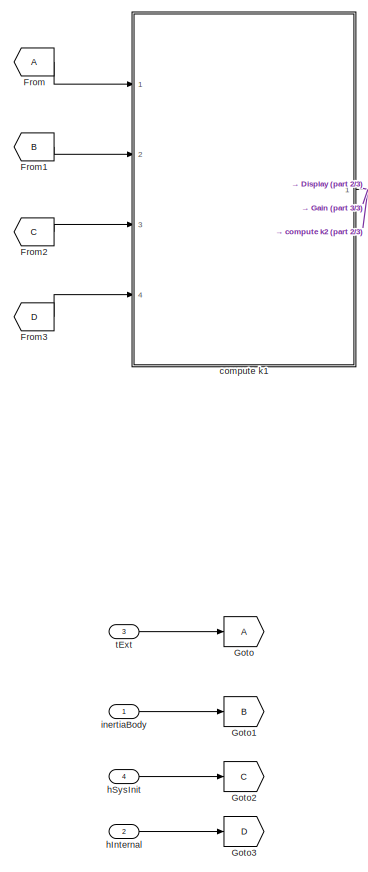
[diagram: Dynamcis/Rotational Dynamics - part 1/3, middle left region]
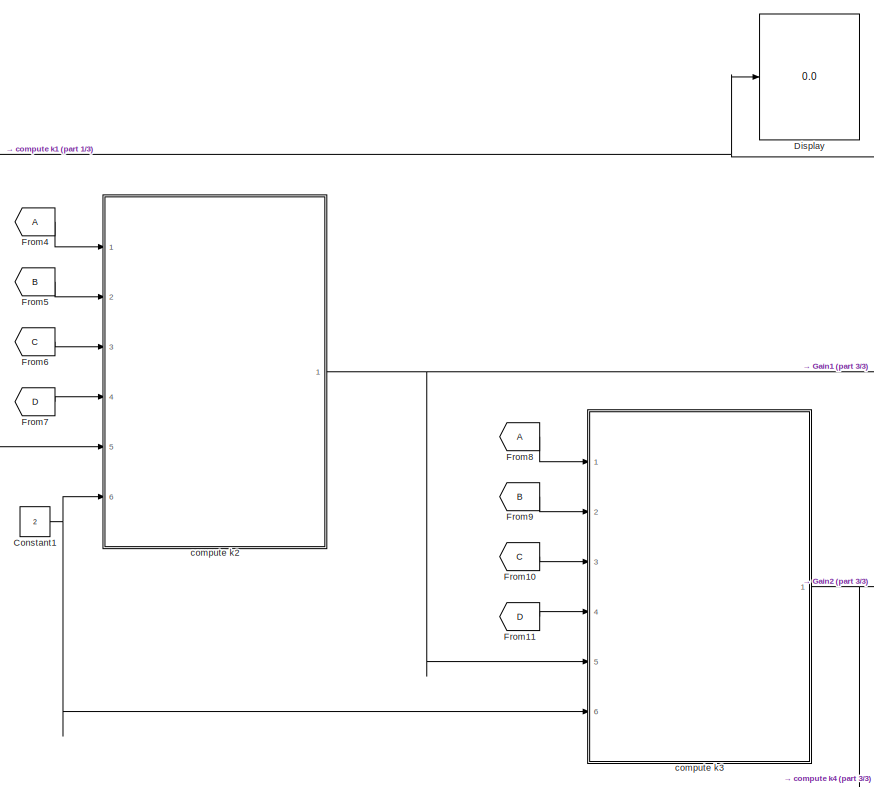
[diagram: Dynamcis/Rotational Dynamics - part 2/3, central region]
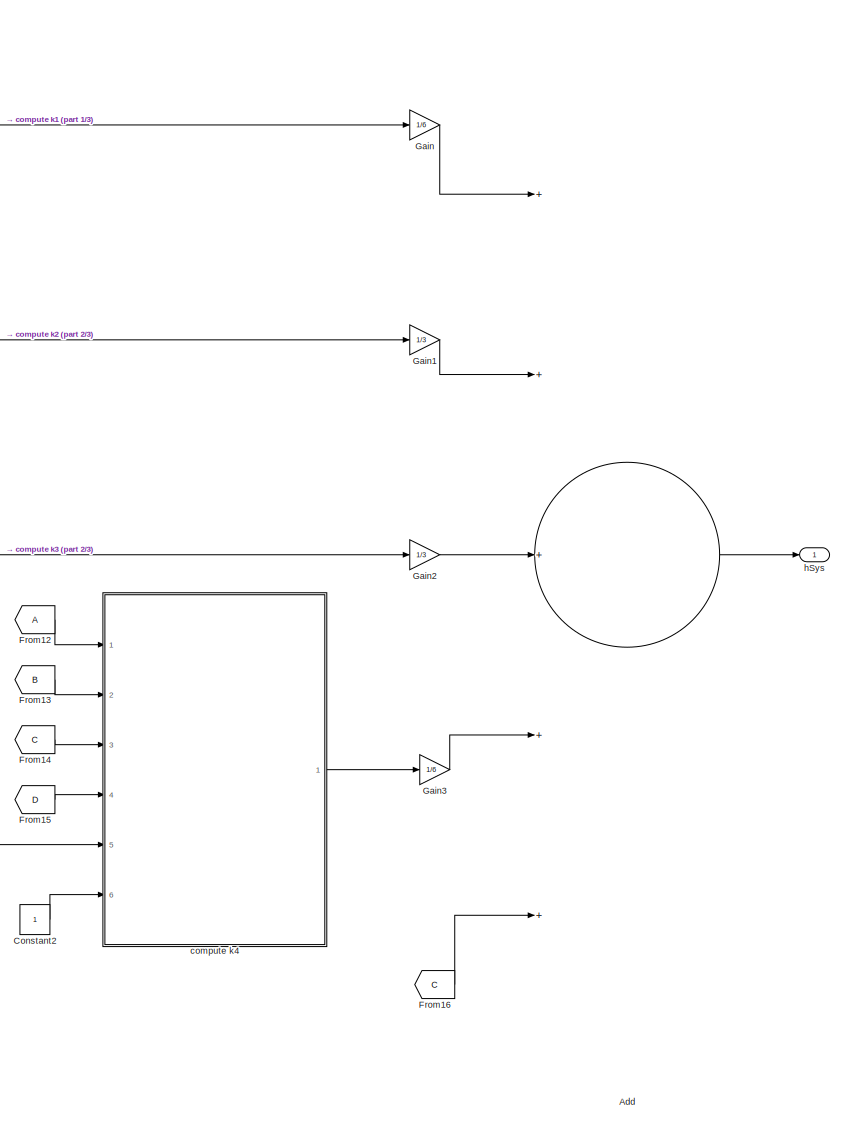
[diagram: Dynamcis/Rotational Dynamics - part 3/3, right side, full height]
BLOCK [SubSystem] Dynamcis/Rotational Dynamics
  Ports = [4, 1]
  RequestExecContextInheritance = off
BLOCK [Sum] Dynamcis/Rotational Dynamics/Add
  InputSameDT = off
  Inputs = +++++
  OutDataTypeStr = Inherit: Inherit via internal rule
  Ports = [5, 1]
  SaturateOnIntegerOverflow = off
BLOCK [Constant] Dynamcis/Rotational Dynamics/Constant1
  Value = 2
BLOCK [Constant] Dynamcis/Rotational Dynamics/Constant2
BLOCK [Display] Dynamcis/Rotational Dynamics/Display
  Decimation = 1
  Ports = [1]
BLOCK [From] Dynamcis/Rotational Dynamics/From
BLOCK [From] Dynamcis/Rotational Dynamics/From1
  GotoTag = B
BLOCK [From] Dynamcis/Rotational Dynamics/From10
  GotoTag = C
BLOCK [From] Dynamcis/Rotational Dynamics/From11
  GotoTag = D
BLOCK [From] Dynamcis/Rotational Dynamics/From12
BLOCK [From] Dynamcis/Rotational Dynamics/From13
  GotoTag = B
BLOCK [From] Dynamcis/Rotational Dynamics/From14
  GotoTag = C
BLOCK [From] Dynamcis/Rotational Dynamics/From15
  GotoTag = D
BLOCK [From] Dynamcis/Rotational Dynamics/From16
  GotoTag = C
BLOCK [From] Dynamcis/Rotational Dynamics/From2
  GotoTag = C
BLOCK [From] Dynamcis/Rotational Dynamics/From3
  GotoTag = D
BLOCK [From] Dynamcis/Rotational Dynamics/From4
BLOCK [From] Dynamcis/Rotational Dynamics/From5
  GotoTag = B
BLOCK [From] Dynamcis/Rotational Dynamics/From6
  GotoTag = C
BLOCK [From] Dynamcis/Rotational Dynamics/From7
  GotoTag = D
BLOCK [From] Dynamcis/Rotational Dynamics/From8
BLOCK [From] Dynamcis/Rotational Dynamics/From9
  GotoTag = B
BLOCK [Gain] Dynamcis/Rotational Dynamics/Gain
  Gain = 1/6
  OutDataTypeStr = Inherit: Inherit via internal rule
  ParamDataTypeStr = Inherit: Inherit via internal rule
  SaturateOnIntegerOverflow = off
BLOCK [Gain] Dynamcis/Rotational Dynamics/Gain1
  Gain = 1/3
  OutDataTypeStr = Inherit: Inherit via internal rule
  ParamDataTypeStr = Inherit: Inherit via internal rule
  SaturateOnIntegerOverflow = off
BLOCK [Gain] Dynamcis/Rotational Dynamics/Gain2
  Gain = 1/3
  OutDataTypeStr = Inherit: Inherit via internal rule
  ParamDataTypeStr = Inherit: Inherit via internal rule
  SaturateOnIntegerOverflow = off
BLOCK [Gain] Dynamcis/Rotational Dynamics/Gain3
  Gain = 1/6
  OutDataTypeStr = Inherit: Inherit via internal rule
  ParamDataTypeStr = Inherit: Inherit via internal rule
  SaturateOnIntegerOverflow = off
BLOCK [Goto] Dynamcis/Rotational Dynamics/Goto
BLOCK [Goto] Dynamcis/Rotational Dynamics/Goto1
  GotoTag = B
BLOCK [Goto] Dynamcis/Rotational Dynamics/Goto2
  GotoTag = C
BLOCK [Goto] Dynamcis/Rotational Dynamics/Goto3
  GotoTag = D
BLOCK [SubSystem] Dynamcis/Rotational Dynamics/compute k1
  Ports = [4, 1]
  RequestExecContextInheritance = off
BLOCK [Gain] Dynamcis/Rotational Dynamics/compute k1/Gain
  Gain = Ts
  OutDataTypeStr = Inherit: Inherit via internal rule
  ParamDataTypeStr = Inherit: Inherit via internal rule
  SaturateOnIntegerOverflow = off
BLOCK [Inport] Dynamcis/Rotational Dynamics/compute k1/hInternal
  IconDisplay = Port number
  Port = 4
BLOCK [Inport] Dynamcis/Rotational Dynamics/compute k1/hSysInit
  IconDisplay = Port number
  Port = 3
BLOCK [SubSystem] Dynamcis/Rotational Dynamics/compute k1/hdot
  Ports = [4, 1]
  RequestExecContextInheritance = off
BLOCK [Sum] Dynamcis/Rotational Dynamics/compute k1/hdot/Add1
  InputSameDT = off
  Inputs = +-
  OutDataTypeStr = Inherit: Inherit via internal rule
  Ports = [2, 1]
  SaturateOnIntegerOverflow = off
BLOCK [Reference] Dynamcis/Rotational Dynamics/compute k1/hdot/Cross Product  REF=vrlib/Utilities/Cross Product
  Ports = [2, 1]
  SourceBlock = vrlib/Utilities/Cross Product
  SourceProductBaseCode = VR
  SourceProductName = Simulink 3D Animation
  SourceType = Cross Product
BLOCK [SubSystem] Dynamcis/Rotational Dynamics/compute k1/hdot/compute wBody
  Ports = [3, 1]
  RequestExecContextInheritance = off
BLOCK [Sum] Dynamcis/Rotational Dynamics/compute k1/hdot/compute wBody/Add
  InputSameDT = off
  Inputs = +-
  OutDataTypeStr = Inherit: Inherit via internal rule
  Ports = [2, 1]
  SaturateOnIntegerOverflow = off
BLOCK [Reference] Dynamcis/Rotational Dynamics/compute k1/hdot/compute wBody/Invert 3x3 Matrix  REF=aerolibutil/Invert 
3x3 Matrix
  Ports = [1, 1]
  SourceBlock = aerolibutil/Invert \n3x3 Matrix
  SourceProductBaseCode = AE
  SourceProductName = Aerospace Blockset
  SourceType = Invert 3x3 Matrix
BLOCK [Product] Dynamcis/Rotational Dynamics/compute k1/hdot/compute wBody/Matrix Multiply
  InputSameDT = off
  Multiplication = Matrix(*)
  OutDataTypeStr = Inherit: Inherit via internal rule
  Ports = [2, 1]
  RndMeth = Floor
  SaturateOnIntegerOverflow = off
BLOCK [Inport] Dynamcis/Rotational Dynamics/compute k1/hdot/compute wBody/hInt
  IconDisplay = Port number
  Port = 3
BLOCK [Inport] Dynamcis/Rotational Dynamics/compute k1/hdot/compute wBody/hSys
  IconDisplay = Port number
  Port = 2
BLOCK [Inport] Dynamcis/Rotational Dynamics/compute k1/hdot/compute wBody/inertiaBody
  IconDisplay = Port number
BLOCK [Outport] Dynamcis/Rotational Dynamics/compute k1/hdot/compute wBody/wBody
  IconDisplay = Port number
BLOCK [Outport] Dynamcis/Rotational Dynamics/compute k1/hdot/hDotSys
  IconDisplay = Port number
BLOCK [Inport] Dynamcis/Rotational Dynamics/compute k1/hdot/hInternal
  IconDisplay = Port number
  Port = 4
BLOCK [Inport] Dynamcis/Rotational Dynamics/compute k1/hdot/hSys
  IconDisplay = Port number
  Port = 3
BLOCK [Inport] Dynamcis/Rotational Dynamics/compute k1/hdot/inertiaBody
  IconDisplay = Port number
  Port = 2
BLOCK [Inport] Dynamcis/Rotational Dynamics/compute k1/hdot/tExt
  IconDisplay = Port number
BLOCK [Inport] Dynamcis/Rotational Dynamics/compute k1/inertiaBody
  IconDisplay = Port number
  Port = 2
BLOCK [Outport] Dynamcis/Rotational Dynamics/compute k1/k1
  IconDisplay = Port number
BLOCK [Inport] Dynamcis/Rotational Dynamics/compute k1/tExt
  IconDisplay = Port number
BLOCK [SubSystem] Dynamcis/Rotational Dynamics/compute k2
  Ports = [6, 1]
  RequestExecContextInheritance = off
BLOCK [Sum] Dynamcis/Rotational Dynamics/compute k2/Add
  InputSameDT = off
  OutDataTypeStr = Inherit: Inherit via internal rule
  Ports = [2, 1]
  SaturateOnIntegerOverflow = off
BLOCK [Product] Dynamcis/Rotational Dynamics/compute k2/Divide
  InputSameDT = off
  Inputs = */
  OutDataTypeStr = Inherit: Inherit via internal rule
  Ports = [2, 1]
  RndMeth = Floor
  SaturateOnIntegerOverflow = off
BLOCK [Gain] Dynamcis/Rotational Dynamics/compute k2/Gain
  Gain = Ts
  OutDataTypeStr = Inherit: Inherit via internal rule
  ParamDataTypeStr = Inherit: Inherit via internal rule
  SaturateOnIntegerOverflow = off
BLOCK [Inport] Dynamcis/Rotational Dynamics/compute k2/coeff
  IconDisplay = Port number
  Port = 6
BLOCK [Inport] Dynamcis/Rotational Dynamics/compute k2/hInternal
  IconDisplay = Port number
  Port = 4
BLOCK [Inport] Dynamcis/Rotational Dynamics/compute k2/hSysInit
  IconDisplay = Port number
  Port = 3
BLOCK [SubSystem] Dynamcis/Rotational Dynamics/compute k2/hdot
  Ports = [4, 1]
  RequestExecContextInheritance = off
BLOCK [Sum] Dynamcis/Rotational Dynamics/compute k2/hdot/Add1
  InputSameDT = off
  Inputs = +-
  OutDataTypeStr = Inherit: Inherit via internal rule
  Ports = [2, 1]
  SaturateOnIntegerOverflow = off
BLOCK [Reference] Dynamcis/Rotational Dynamics/compute k2/hdot/Cross Product  REF=vrlib/Utilities/Cross Product
  Ports = [2, 1]
  SourceBlock = vrlib/Utilities/Cross Product
  SourceProductBaseCode = VR
  SourceProductName = Simulink 3D Animation
  SourceType = Cross Product
BLOCK [SubSystem] Dynamcis/Rotational Dynamics/compute k2/hdot/compute wBody
  Ports = [3, 1]
  RequestExecContextInheritance = off
BLOCK [Sum] Dynamcis/Rotational Dynamics/compute k2/hdot/compute wBody/Add
  InputSameDT = off
  Inputs = +-
  OutDataTypeStr = Inherit: Inherit via internal rule
  Ports = [2, 1]
  SaturateOnIntegerOverflow = off
BLOCK [Reference] Dynamcis/Rotational Dynamics/compute k2/hdot/compute wBody/Invert 3x3 Matrix  REF=aerolibutil/Invert 
3x3 Matrix
  Ports = [1, 1]
  SourceBlock = aerolibutil/Invert \n3x3 Matrix
  SourceProductBaseCode = AE
  SourceProductName = Aerospace Blockset
  SourceType = Invert 3x3 Matrix
BLOCK [Product] Dynamcis/Rotational Dynamics/compute k2/hdot/compute wBody/Matrix Multiply
  InputSameDT = off
  Multiplication = Matrix(*)
  OutDataTypeStr = Inherit: Inherit via internal rule
  Ports = [2, 1]
  RndMeth = Floor
  SaturateOnIntegerOverflow = off
BLOCK [Inport] Dynamcis/Rotational Dynamics/compute k2/hdot/compute wBody/hInt
  IconDisplay = Port number
  Port = 3
BLOCK [Inport] Dynamcis/Rotational Dynamics/compute k2/hdot/compute wBody/hSys
  IconDisplay = Port number
  Port = 2
BLOCK [Inport] Dynamcis/Rotational Dynamics/compute k2/hdot/compute wBody/inertiaBody
  IconDisplay = Port number
BLOCK [Outport] Dynamcis/Rotational Dynamics/compute k2/hdot/compute wBody/wBody
  IconDisplay = Port number
BLOCK [Outport] Dynamcis/Rotational Dynamics/compute k2/hdot/hDotSys
  IconDisplay = Port number
BLOCK [Inport] Dynamcis/Rotational Dynamics/compute k2/hdot/hInternal
  IconDisplay = Port number
  Port = 4
BLOCK [Inport] Dynamcis/Rotational Dynamics/compute k2/hdot/hSys
  IconDisplay = Port number
  Port = 3
BLOCK [Inport] Dynamcis/Rotational Dynamics/compute k2/hdot/inertiaBody
  IconDisplay = Port number
  Port = 2
BLOCK [Inport] Dynamcis/Rotational Dynamics/compute k2/hdot/tExt
  IconDisplay = Port number
BLOCK [Inport] Dynamcis/Rotational Dynamics/compute k2/increment
  IconDisplay = Port number
  Port = 5
BLOCK [Inport] Dynamcis/Rotational Dynamics/compute k2/inertiaBody
  IconDisplay = Port number
  Port = 2
BLOCK [Outport] Dynamcis/Rotational Dynamics/compute k2/k2
  IconDisplay = Port number
BLOCK [Inport] Dynamcis/Rotational Dynamics/compute k2/tExt
  IconDisplay = Port number
BLOCK [SubSystem] Dynamcis/Rotational Dynamics/compute k3
  Ports = [6, 1]
  RequestExecContextInheritance = off
BLOCK [Sum] Dynamcis/Rotational Dynamics/compute k3/Add
  InputSameDT = off
  OutDataTypeStr = Inherit: Inherit via internal rule
  Ports = [2, 1]
  SaturateOnIntegerOverflow = off
BLOCK [Product] Dynamcis/Rotational Dynamics/compute k3/Divide
  InputSameDT = off
  Inputs = */
  OutDataTypeStr = Inherit: Inherit via internal rule
  Ports = [2, 1]
  RndMeth = Floor
  SaturateOnIntegerOverflow = off
BLOCK [Gain] Dynamcis/Rotational Dynamics/compute k3/Gain
  Gain = Ts
  OutDataTypeStr = Inherit: Inherit via internal rule
  ParamDataTypeStr = Inherit: Inherit via internal rule
  SaturateOnIntegerOverflow = off
BLOCK [Inport] Dynamcis/Rotational Dynamics/compute k3/coeff
  IconDisplay = Port number
  Port = 6
BLOCK [Inport] Dynamcis/Rotational Dynamics/compute k3/hInternal
  IconDisplay = Port number
  Port = 4
BLOCK [Inport] Dynamcis/Rotational Dynamics/compute k3/hSysInit
  IconDisplay = Port number
  Port = 3
BLOCK [SubSystem] Dynamcis/Rotational Dynamics/compute k3/hdot
  Ports = [4, 1]
  RequestExecContextInheritance = off
BLOCK [Sum] Dynamcis/Rotational Dynamics/compute k3/hdot/Add1
  InputSameDT = off
  Inputs = +-
  OutDataTypeStr = Inherit: Inherit via internal rule
  Ports = [2, 1]
  SaturateOnIntegerOverflow = off
BLOCK [Reference] Dynamcis/Rotational Dynamics/compute k3/hdot/Cross Product  REF=vrlib/Utilities/Cross Product
  Ports = [2, 1]
  SourceBlock = vrlib/Utilities/Cross Product
  SourceProductBaseCode = VR
  SourceProductName = Simulink 3D Animation
  SourceType = Cross Product
BLOCK [SubSystem] Dynamcis/Rotational Dynamics/compute k3/hdot/compute wBody
  Ports = [3, 1]
  RequestExecContextInheritance = off
BLOCK [Sum] Dynamcis/Rotational Dynamics/compute k3/hdot/compute wBody/Add
  InputSameDT = off
  Inputs = +-
  OutDataTypeStr = Inherit: Inherit via internal rule
  Ports = [2, 1]
  SaturateOnIntegerOverflow = off
BLOCK [Reference] Dynamcis/Rotational Dynamics/compute k3/hdot/compute wBody/Invert 3x3 Matrix  REF=aerolibutil/Invert 
3x3 Matrix
  Ports = [1, 1]
  SourceBlock = aerolibutil/Invert \n3x3 Matrix
  SourceProductBaseCode = AE
  SourceProductName = Aerospace Blockset
  SourceType = Invert 3x3 Matrix
BLOCK [Product] Dynamcis/Rotational Dynamics/compute k3/hdot/compute wBody/Matrix Multiply
  InputSameDT = off
  Multiplication = Matrix(*)
  OutDataTypeStr = Inherit: Inherit via internal rule
  Ports = [2, 1]
  RndMeth = Floor
  SaturateOnIntegerOverflow = off
BLOCK [Inport] Dynamcis/Rotational Dynamics/compute k3/hdot/compute wBody/hInt
  IconDisplay = Port number
  Port = 3
BLOCK [Inport] Dynamcis/Rotational Dynamics/compute k3/hdot/compute wBody/hSys
  IconDisplay = Port number
  Port = 2
BLOCK [Inport] Dynamcis/Rotational Dynamics/compute k3/hdot/compute wBody/inertiaBody
  IconDisplay = Port number
BLOCK [Outport] Dynamcis/Rotational Dynamics/compute k3/hdot/compute wBody/wBody
  IconDisplay = Port number
BLOCK [Outport] Dynamcis/Rotational Dynamics/compute k3/hdot/hDotSys
  IconDisplay = Port number
BLOCK [Inport] Dynamcis/Rotational Dynamics/compute k3/hdot/hInternal
  IconDisplay = Port number
  Port = 4
BLOCK [Inport] Dynamcis/Rotational Dynamics/compute k3/hdot/hSys
  IconDisplay = Port number
  Port = 3
BLOCK [Inport] Dynamcis/Rotational Dynamics/compute k3/hdot/inertiaBody
  IconDisplay = Port number
  Port = 2
BLOCK [Inport] Dynamcis/Rotational Dynamics/compute k3/hdot/tExt
  IconDisplay = Port number
BLOCK [Inport] Dynamcis/Rotational Dynamics/compute k3/increment
  IconDisplay = Port number
  Port = 5
BLOCK [Inport] Dynamcis/Rotational Dynamics/compute k3/inertiaBody
  IconDisplay = Port number
  Port = 2
BLOCK [Outport] Dynamcis/Rotational Dynamics/compute k3/k3
  IconDisplay = Port number
BLOCK [Inport] Dynamcis/Rotational Dynamics/compute k3/tExt
  IconDisplay = Port number
BLOCK [SubSystem] Dynamcis/Rotational Dynamics/compute k4
  Ports = [6, 1]
  RequestExecContextInheritance = off
BLOCK [Sum] Dynamcis/Rotational Dynamics/compute k4/Add
  InputSameDT = off
  OutDataTypeStr = Inherit: Inherit via internal rule
  Ports = [2, 1]
  SaturateOnIntegerOverflow = off
BLOCK [Product] Dynamcis/Rotational Dynamics/compute k4/Divide
  InputSameDT = off
  Inputs = */
  OutDataTypeStr = Inherit: Inherit via internal rule
  Ports = [2, 1]
  RndMeth = Floor
  SaturateOnIntegerOverflow = off
BLOCK [Gain] Dynamcis/Rotational Dynamics/compute k4/Gain
  Gain = Ts
  OutDataTypeStr = Inherit: Inherit via internal rule
  ParamDataTypeStr = Inherit: Inherit via internal rule
  SaturateOnIntegerOverflow = off
BLOCK [Inport] Dynamcis/Rotational Dynamics/compute k4/coeff
  IconDisplay = Port number
  Port = 6
BLOCK [Inport] Dynamcis/Rotational Dynamics/compute k4/hInternal
  IconDisplay = Port number
  Port = 4
BLOCK [Inport] Dynamcis/Rotational Dynamics/compute k4/hSysInit
  IconDisplay = Port number
  Port = 3
BLOCK [SubSystem] Dynamcis/Rotational Dynamics/compute k4/hdot
  Ports = [4, 1]
  RequestExecContextInheritance = off
BLOCK [Sum] Dynamcis/Rotational Dynamics/compute k4/hdot/Add1
  InputSameDT = off
  Inputs = +-
  OutDataTypeStr = Inherit: Inherit via internal rule
  Ports = [2, 1]
  SaturateOnIntegerOverflow = off
BLOCK [Reference] Dynamcis/Rotational Dynamics/compute k4/hdot/Cross Product  REF=vrlib/Utilities/Cross Product
  Ports = [2, 1]
  SourceBlock = vrlib/Utilities/Cross Product
  SourceProductBaseCode = VR
  SourceProductName = Simulink 3D Animation
  SourceType = Cross Product
BLOCK [SubSystem] Dynamcis/Rotational Dynamics/compute k4/hdot/compute wBody
  Ports = [3, 1]
  RequestExecContextInheritance = off
BLOCK [Sum] Dynamcis/Rotational Dynamics/compute k4/hdot/compute wBody/Add
  InputSameDT = off
  Inputs = +-
  OutDataTypeStr = Inherit: Inherit via internal rule
  Ports = [2, 1]
  SaturateOnIntegerOverflow = off
BLOCK [Reference] Dynamcis/Rotational Dynamics/compute k4/hdot/compute wBody/Invert 3x3 Matrix  REF=aerolibutil/Invert 
3x3 Matrix
  Ports = [1, 1]
  SourceBlock = aerolibutil/Invert \n3x3 Matrix
  SourceProductBaseCode = AE
  SourceProductName = Aerospace Blockset
  SourceType = Invert 3x3 Matrix
BLOCK [Product] Dynamcis/Rotational Dynamics/compute k4/hdot/compute wBody/Matrix Multiply
  InputSameDT = off
  Multiplication = Matrix(*)
  OutDataTypeStr = Inherit: Inherit via internal rule
  Ports = [2, 1]
  RndMeth = Floor
  SaturateOnIntegerOverflow = off
BLOCK [Inport] Dynamcis/Rotational Dynamics/compute k4/hdot/compute wBody/hInt
  IconDisplay = Port number
  Port = 3
BLOCK [Inport] Dynamcis/Rotational Dynamics/compute k4/hdot/compute wBody/hSys
  IconDisplay = Port number
  Port = 2
BLOCK [Inport] Dynamcis/Rotational Dynamics/compute k4/hdot/compute wBody/inertiaBody
  IconDisplay = Port number
BLOCK [Outport] Dynamcis/Rotational Dynamics/compute k4/hdot/compute wBody/wBody
  IconDisplay = Port number
BLOCK [Outport] Dynamcis/Rotational Dynamics/compute k4/hdot/hDotSys
  IconDisplay = Port number
BLOCK [Inport] Dynamcis/Rotational Dynamics/compute k4/hdot/hInternal
  IconDisplay = Port number
  Port = 4
BLOCK [Inport] Dynamcis/Rotational Dynamics/compute k4/hdot/hSys
  IconDisplay = Port number
  Port = 3
BLOCK [Inport] Dynamcis/Rotational Dynamics/compute k4/hdot/inertiaBody
  IconDisplay = Port number
  Port = 2
BLOCK [Inport] Dynamcis/Rotational Dynamics/compute k4/hdot/tExt
  IconDisplay = Port number
BLOCK [Inport] Dynamcis/Rotational Dynamics/compute k4/increment
  IconDisplay = Port number
  Port = 5
BLOCK [Inport] Dynamcis/Rotational Dynamics/compute k4/inertiaBody
  IconDisplay = Port number
  Port = 2
BLOCK [Outport] Dynamcis/Rotational Dynamics/compute k4/k4
  IconDisplay = Port number
BLOCK [Inport] Dynamcis/Rotational Dynamics/compute k4/tExt
  IconDisplay = Port number
BLOCK [Inport] Dynamcis/Rotational Dynamics/hInternal
  IconDisplay = Port number
  Port = 2
BLOCK [Outport] Dynamcis/Rotational Dynamics/hSys
  IconDisplay = Port number
BLOCK [Inport] Dynamcis/Rotational Dynamics/hSysInit
  IconDisplay = Port number
  Port = 4
BLOCK [Inport] Dynamcis/Rotational Dynamics/inertiaBody
  IconDisplay = Port number
BLOCK [Inport] Dynamcis/Rotational Dynamics/tExt
  IconDisplay = Port number
  Port = 3
BLOCK [Scope] Dynamcis/Scope
  Floating = off
  NumInputPorts = 1
  Ports = [1]
  ScopeSpecificationString = Simulink.scopes.TimeScopeBlockCfg('CurrentConfiguration', extmgr.ConfigurationSet(extmgr.Configuration('Core','General UI',true),extmgr.Configuration('Core','Source UI',true),extmgr.Configuration('Sources','WiredSimulink',true,'DataLoggingVariableName','ScopeData1'),extmgr.Configuration('Visuals','Time Domain',true,'SerializedDisplays',{struct('MinYLimReal','0.05115','MaxYLimReal','0.25115','YLabe...<+1408ch>
BLOCK [Math] Dynamcis/Transpose
  Operator = transpose
  Ports = [1, 1]
BLOCK [UnitDelay] Dynamcis/Unit Delay
  InitialCondition = Hsys0
  InputProcessing = Elements as channels (sample based)
  SampleTime = Ts
BLOCK [UnitDelay] Dynamcis/Unit Delay1
  InitialCondition = qBody0'
  InputProcessing = Elements as channels (sample based)
  SampleTime = Ts
BLOCK [Concatenate] Dynamcis/Vector Concatenate
  Ports = [2, 1]
BLOCK [SubSystem] Dynamcis/compute wBody
  Ports = [3, 1]
  RequestExecContextInheritance = off
BLOCK [Sum] Dynamcis/compute wBody/Add
  InputSameDT = off
  Inputs = +-
  OutDataTypeStr = Inherit: Inherit via internal rule
  Ports = [2, 1]
  SaturateOnIntegerOverflow = off
BLOCK [Reference] Dynamcis/compute wBody/Invert 3x3 Matrix  REF=aerolibutil/Invert 
3x3 Matrix
  Ports = [1, 1]
  SourceBlock = aerolibutil/Invert \n3x3 Matrix
  SourceProductBaseCode = AE
  SourceProductName = Aerospace Blockset
  SourceType = Invert 3x3 Matrix
BLOCK [Product] Dynamcis/compute wBody/Matrix Multiply
  InputSameDT = off
  Multiplication = Matrix(*)
  OutDataTypeStr = Inherit: Inherit via internal rule
  Ports = [2, 1]
  RndMeth = Floor
  SaturateOnIntegerOverflow = off
BLOCK [Inport] Dynamcis/compute wBody/hInt
  IconDisplay = Port number
  Port = 3
BLOCK [Inport] Dynamcis/compute wBody/hSys
  IconDisplay = Port number
  Port = 2
BLOCK [Inport] Dynamcis/compute wBody/inertiaBody
  IconDisplay = Port number
BLOCK [Outport] Dynamcis/compute wBody/wBody
  IconDisplay = Port number
BLOCK [SubSystem] Dynamcis/compute wBody1
  Ports = [3, 1]
  RequestExecContextInheritance = off
BLOCK [Sum] Dynamcis/compute wBody1/Add
  InputSameDT = off
  Inputs = +-
  OutDataTypeStr = Inherit: Inherit via internal rule
  Ports = [2, 1]
  SaturateOnIntegerOverflow = off
BLOCK [Reference] Dynamcis/compute wBody1/Invert 3x3 Matrix  REF=aerolibutil/Invert 
3x3 Matrix
  Ports = [1, 1]
  SourceBlock = aerolibutil/Invert \n3x3 Matrix
  SourceProductBaseCode = AE
  SourceProductName = Aerospace Blockset
  SourceType = Invert 3x3 Matrix
BLOCK [Product] Dynamcis/compute wBody1/Matrix Multiply
  InputSameDT = off
  Multiplication = Matrix(*)
  OutDataTypeStr = Inherit: Inherit via internal rule
  Ports = [2, 1]
  RndMeth = Floor
  SaturateOnIntegerOverflow = off
BLOCK [Inport] Dynamcis/compute wBody1/hInt
  IconDisplay = Port number
  Port = 3
BLOCK [Inport] Dynamcis/compute wBody1/hSys
  IconDisplay = Port number
  Port = 2
BLOCK [Inport] Dynamcis/compute wBody1/inertiaBody
  IconDisplay = Port number
BLOCK [Outport] Dynamcis/compute wBody1/wBody
  IconDisplay = Port number
BLOCK [Inport] Dynamcis/hInternal
  IconDisplay = Port number
  Port = 2
BLOCK [Inport] Dynamcis/inertiaBody
  IconDisplay = Port number
  Port = 3
BLOCK [Outport] Dynamcis/qPrev 
  IconDisplay = Port number
  Port = 2
BLOCK [Outport] Dynamcis/state
  IconDisplay = Port number
BLOCK [Inport] Dynamcis/tExt
  IconDisplay = Port number
BLOCK [Ground] Ground1
BLOCK [SubSystem] Junction
  Ports = [3, 2]
  RequestExecContextInheritance = off
BLOCK [Terminator] Junction/Terminator
BLOCK [Outport] Junction/hInternal
  IconDisplay = Port number
  Port = 2
BLOCK [Inport] Junction/massProperties
  IconDisplay = Port number
BLOCK [Outport] Junction/tExt
  IconDisplay = Port number
BLOCK [Inport] Junction/tGravity
  IconDisplay = Port number
  Port = 2
BLOCK [Inport] Junction/wheelSpeed
  IconDisplay = Port number
  Port = 3
BLOCK [SubSystem] Reaction Wheels
  Ports = [1, 1]
  RequestExecContextInheritance = off
BLOCK [Constant] Reaction Wheels/Constant
  Value = [0 0 0]
BLOCK [Terminator] Reaction Wheels/Terminator
BLOCK [Inport] Reaction Wheels/wheelCmds
  IconDisplay = Port number
BLOCK [Outport] Reaction Wheels/wheelSpeeds
  IconDisplay = Port number
BLOCK [Scope] Scope
  Floating = off
  NumInputPorts = 1
  Ports = [1]
  ScopeSpecificationString = Simulink.scopes.TimeScopeBlockCfg('CurrentConfiguration', extmgr.ConfigurationSet(extmgr.Configuration('Core','General UI',true),extmgr.Configuration('Core','Source UI',true),extmgr.Configuration('Sources','WiredSimulink',true),extmgr.Configuration('Visuals','Time Domain',true,'SerializedDisplays',{struct('MinYLimReal','0.05115','MaxYLimReal','0.25115','YLabelReal','','MinYLimMag','0.05115','MaxYL...<+1357ch>
BLOCK [Scope] Scope1
  Floating = off
  NumInputPorts = 1
  Ports = [1]
  ScopeSpecificationString = Simulink.scopes.TimeScopeBlockCfg('CurrentConfiguration', extmgr.ConfigurationSet(extmgr.Configuration('Core','General UI',true),extmgr.Configuration('Core','Source UI',true),extmgr.Configuration('Sources','WiredSimulink',true,'DataLoggingVariableName','ScopeData1'),extmgr.Configuration('Visuals','Time Domain',true,'SerializedDisplays',{struct('MinYLimReal','-1.13191','MaxYLimReal','1.12416','YLab...<+1463ch>
BLOCK [Selector] Selector
  IndexOptions = Index vector (dialog)
  Indices = [1:4]
  InputPortWidth = 7
  OutputSizes = 1
  Ports = [1, 1]
BLOCK [Selector] Selector1
  IndexOptions = Index vector (dialog)
  Indices = [5:7]
  InputPortWidth = 7
  OutputSizes = 1
  Ports = [1, 1]
BLOCK [SubSystem] Sensors
  Ports = [1, 1]
  RequestExecContextInheritance = off
BLOCK [Inport] Sensors/state
  IconDisplay = Port number
BLOCK [Outport] Sensors/stateMeasured
  IconDisplay = Port number
BLOCK [ToWorkspace] To Workspace
  FixptAsFi = on
  MaxDataPoints = inf
  Ports = [1]
  SampleTime = -1
  Save2DSignal = 3-D array (concatenate along third dimension)
  SaveFormat = Timeseries
  VariableName = simout
ANNOTATION Dynamcis/Kinematics/compute k1/Quaternion Kinematics: may need to add a more accurate integrator
ANNOTATION Dynamcis/Kinematics/compute k2/Quaternion Kinematics: may need to add a more accurate integrator
ANNOTATION Dynamcis/Kinematics/compute k3/Quaternion Kinematics: may need to add a more accurate integrator
ANNOTATION Dynamcis/Kinematics/compute k4/Quaternion Kinematics: may need to add a more accurate integrator
LINE Constant:1 -> Dynamcis:3
LINE Controller/stateMeasured:1 -> Controller/wheelCmds:1
LINE Controller:1 -> Reaction Wheels:1
LINE Disturbances/Constant1:1 -> Disturbances/Product:3
LINE Disturbances/Constant2:1 -> Disturbances/Product:2
LINE Disturbances/Constant3:1 -> Disturbances/Product:1
LINE Disturbances/Constant4:1 -> Disturbances/tGravity:1
LINE Disturbances/Constant:1 -> Disturbances/Subsystem1:2
LINE Disturbances/Cross Product:1 -> Disturbances/Terminator:1
LINE Disturbances/Product:1 -> Disturbances/Cross Product:1
LINE Disturbances/Subsystem1/Constant:1 -> Disturbances/Subsystem1/Vector Concatenate:2
LINE Disturbances/Subsystem1/Selector:1 -> Disturbances/Subsystem1/r2:1
LINE Disturbances/Subsystem1/Subsystem/Gain:1 -> Disturbances/Subsystem1/Subsystem/Vector Concatenate:1
LINE Disturbances/Subsystem1/Subsystem/Selector1:1 -> Disturbances/Subsystem1/Subsystem/Vector Concatenate:2
LINE Disturbances/Subsystem1/Subsystem/Selector:1 -> Disturbances/Subsystem1/Subsystem/Gain:1
LINE Disturbances/Subsystem1/Subsystem/Vector Concatenate:1 -> Disturbances/Subsystem1/Subsystem/qConj:1
NET Disturbances/Subsystem1/Subsystem/q:1 -> Disturbances/Subsystem1/Subsystem/Selector1:1, Disturbances/Subsystem1/Subsystem/Selector:1
LINE Disturbances/Subsystem1/Subsystem:1 -> Disturbances/Subsystem1/qMultiplication:1
LINE Disturbances/Subsystem1/Vector Concatenate:1 -> Disturbances/Subsystem1/qMultiplication1:1
LINE Disturbances/Subsystem1/qMultiplication/Add1:1 -> Disturbances/Subsystem1/qMultiplication/Vector Concatenate:1
LINE Disturbances/Subsystem1/qMultiplication/Add:1 -> Disturbances/Subsystem1/qMultiplication/Vector Concatenate:2
LINE Disturbances/Subsystem1/qMultiplication/Cross Product:1 -> Disturbances/Subsystem1/qMultiplication/Add1:3
LINE Disturbances/Subsystem1/qMultiplication/From1:1 -> Disturbances/Subsystem1/qMultiplication/Product:2
LINE Disturbances/Subsystem1/qMultiplication/From2:1 -> Disturbances/Subsystem1/qMultiplication/Transpose2:1
LINE Disturbances/Subsystem1/qMultiplication/From3:1 -> Disturbances/Subsystem1/qMultiplication/MatrixMultiply:2
LINE Disturbances/Subsystem1/qMultiplication/From4:1 -> Disturbances/Subsystem1/qMultiplication/Product2:1
LINE Disturbances/Subsystem1/qMultiplication/From5:1 -> Disturbances/Subsystem1/qMultiplication/Product2:2
LINE Disturbances/Subsystem1/qMultiplication/From6:1 -> Disturbances/Subsystem1/qMultiplication/Product3:1
LINE Disturbances/Subsystem1/qMultiplication/From7:1 -> Disturbances/Subsystem1/qMultiplication/Product3:2
LINE Disturbances/Subsystem1/qMultiplication/From8:1 -> Disturbances/Subsystem1/qMultiplication/Cross Product:1
LINE Disturbances/Subsystem1/qMultiplication/From9:1 -> Disturbances/Subsystem1/qMultiplication/Cross Product:2
LINE Disturbances/Subsystem1/qMultiplication/From:1 -> Disturbances/Subsystem1/qMultiplication/Product:1
LINE Disturbances/Subsystem1/qMultiplication/MatrixMultiply:1 -> Disturbances/Subsystem1/qMultiplication/Add:2
LINE Disturbances/Subsystem1/qMultiplication/Product2:1 -> Disturbances/Subsystem1/qMultiplication/Add1:1
LINE Disturbances/Subsystem1/qMultiplication/Product3:1 -> Disturbances/Subsystem1/qMultiplication/Add1:2
LINE Disturbances/Subsystem1/qMultiplication/Product:1 -> Disturbances/Subsystem1/qMultiplication/Add:1
LINE Disturbances/Subsystem1/qMultiplication/Selector1:1 -> Disturbances/Subsystem1/qMultiplication/Goto2:1
LINE Disturbances/Subsystem1/qMultiplication/Selector2:1 -> Disturbances/Subsystem1/qMultiplication/Goto1:1
LINE Disturbances/Subsystem1/qMultiplication/Selector3:1 -> Disturbances/Subsystem1/qMultiplication/Goto3:1
LINE Disturbances/Subsystem1/qMultiplication/Selector:1 -> Disturbances/Subsystem1/qMultiplication/Goto:1
LINE Disturbances/Subsystem1/qMultiplication/Transpose2:1 -> Disturbances/Subsystem1/qMultiplication/MatrixMultiply:1
LINE Disturbances/Subsystem1/qMultiplication/Vector Concatenate:1 -> Disturbances/Subsystem1/qMultiplication/q12:1
NET Disturbances/Subsystem1/qMultiplication/q1:1 -> Disturbances/Subsystem1/qMultiplication/Selector2:1, Disturbances/Subsystem1/qMultiplication/Selector:1
NET Disturbances/Subsystem1/qMultiplication/q2:1 -> Disturbances/Subsystem1/qMultiplication/Selector1:1, Disturbances/Subsystem1/qMultiplication/Selector3:1
LINE Disturbances/Subsystem1/qMultiplication1/Add1:1 -> Disturbances/Subsystem1/qMultiplication1/Vector Concatenate:1
LINE Disturbances/Subsystem1/qMultiplication1/Add:1 -> Disturbances/Subsystem1/qMultiplication1/Vector Concatenate:2
LINE Disturbances/Subsystem1/qMultiplication1/Cross Product:1 -> Disturbances/Subsystem1/qMultiplication1/Add1:3
LINE Disturbances/Subsystem1/qMultiplication1/From1:1 -> Disturbances/Subsystem1/qMultiplication1/Product:2
LINE Disturbances/Subsystem1/qMultiplication1/From2:1 -> Disturbances/Subsystem1/qMultiplication1/Transpose2:1
LINE Disturbances/Subsystem1/qMultiplication1/From3:1 -> Disturbances/Subsystem1/qMultiplication1/MatrixMultiply:2
LINE Disturbances/Subsystem1/qMultiplication1/From4:1 -> Disturbances/Subsystem1/qMultiplication1/Product2:1
LINE Disturbances/Subsystem1/qMultiplication1/From5:1 -> Disturbances/Subsystem1/qMultiplication1/Product2:2
LINE Disturbances/Subsystem1/qMultiplication1/From6:1 -> Disturbances/Subsystem1/qMultiplication1/Product3:1
LINE Disturbances/Subsystem1/qMultiplication1/From7:1 -> Disturbances/Subsystem1/qMultiplication1/Product3:2
LINE Disturbances/Subsystem1/qMultiplication1/From8:1 -> Disturbances/Subsystem1/qMultiplication1/Cross Product:1
LINE Disturbances/Subsystem1/qMultiplication1/From9:1 -> Disturbances/Subsystem1/qMultiplication1/Cross Product:2
LINE Disturbances/Subsystem1/qMultiplication1/From:1 -> Disturbances/Subsystem1/qMultiplication1/Product:1
LINE Disturbances/Subsystem1/qMultiplication1/MatrixMultiply:1 -> Disturbances/Subsystem1/qMultiplication1/Add:2
LINE Disturbances/Subsystem1/qMultiplication1/Product2:1 -> Disturbances/Subsystem1/qMultiplication1/Add1:1
LINE Disturbances/Subsystem1/qMultiplication1/Product3:1 -> Disturbances/Subsystem1/qMultiplication1/Add1:2
LINE Disturbances/Subsystem1/qMultiplication1/Product:1 -> Disturbances/Subsystem1/qMultiplication1/Add:1
LINE Disturbances/Subsystem1/qMultiplication1/Selector1:1 -> Disturbances/Subsystem1/qMultiplication1/Goto2:1
LINE Disturbances/Subsystem1/qMultiplication1/Selector2:1 -> Disturbances/Subsystem1/qMultiplication1/Goto1:1
LINE Disturbances/Subsystem1/qMultiplication1/Selector3:1 -> Disturbances/Subsystem1/qMultiplication1/Goto3:1
LINE Disturbances/Subsystem1/qMultiplication1/Selector:1 -> Disturbances/Subsystem1/qMultiplication1/Goto:1
LINE Disturbances/Subsystem1/qMultiplication1/Transpose2:1 -> Disturbances/Subsystem1/qMultiplication1/MatrixMultiply:1
LINE Disturbances/Subsystem1/qMultiplication1/Vector Concatenate:1 -> Disturbances/Subsystem1/qMultiplication1/q12:1
NET Disturbances/Subsystem1/qMultiplication1/q1:1 -> Disturbances/Subsystem1/qMultiplication1/Selector2:1, Disturbances/Subsystem1/qMultiplication1/Selector:1
NET Disturbances/Subsystem1/qMultiplication1/q2:1 -> Disturbances/Subsystem1/qMultiplication1/Selector1:1, Disturbances/Subsystem1/qMultiplication1/Selector3:1
LINE Disturbances/Subsystem1/qMultiplication1:1 -> Disturbances/Subsystem1/qMultiplication:2
LINE Disturbances/Subsystem1/qMultiplication:1 -> Disturbances/Subsystem1/Selector:1
NET Disturbances/Subsystem1/qa2b:1 -> Disturbances/Subsystem1/Subsystem:1, Disturbances/Subsystem1/qMultiplication1:2
LINE Disturbances/Subsystem1/r1:1 -> Disturbances/Subsystem1/Vector Concatenate:1
LINE Disturbances/Subsystem1:1 -> Disturbances/Cross Product:2
LINE Disturbances/Transpose:1 -> Disturbances/Subsystem1:1
LINE Disturbances/qPrev:1 -> Disturbances/Transpose:1
LINE Disturbances:1 -> Junction:2
LINE Dynamcis/From1:1 -> Dynamcis/Rotational Dynamics:2
LINE Dynamcis/From2:1 -> Dynamcis/compute wBody:1
LINE Dynamcis/From3:1 -> Dynamcis/compute wBody:3
LINE Dynamcis/From4:1 -> Dynamcis/Rotational Dynamics:3
LINE Dynamcis/From5:1 -> Dynamcis/compute wBody1:1
LINE Dynamcis/From6:1 -> Dynamcis/compute wBody1:3
LINE Dynamcis/From:1 -> Dynamcis/Rotational Dynamics:1
LINE Dynamcis/Kinematics/Add:1 -> Dynamcis/Kinematics/qCurr:1
NET Dynamcis/Kinematics/Constant1:1 -> Dynamcis/Kinematics/compute k2:3, Dynamcis/Kinematics/compute k3:3
LINE Dynamcis/Kinematics/Constant:1 -> Dynamcis/Kinematics/compute k4:3
LINE Dynamcis/Kinematics/From16:1 -> Dynamcis/Kinematics/Add:5
LINE Dynamcis/Kinematics/From1:1 -> Dynamcis/Kinematics/compute k1:2
LINE Dynamcis/Kinematics/From2:1 -> Dynamcis/Kinematics/compute k2:1
LINE Dynamcis/Kinematics/From3:1 -> Dynamcis/Kinematics/compute k3:1
LINE Dynamcis/Kinematics/From4:1 -> Dynamcis/Kinematics/compute k4:1
LINE Dynamcis/Kinematics/From5:1 -> Dynamcis/Kinematics/compute k2:4
LINE Dynamcis/Kinematics/From6:1 -> Dynamcis/Kinematics/compute k3:4
LINE Dynamcis/Kinematics/From7:1 -> Dynamcis/Kinematics/compute k4:4
LINE Dynamcis/Kinematics/From:1 -> Dynamcis/Kinematics/compute k1:1
LINE Dynamcis/Kinematics/Gain1:1 -> Dynamcis/Kinematics/Add:2
LINE Dynamcis/Kinematics/Gain2:1 -> Dynamcis/Kinematics/Add:3
LINE Dynamcis/Kinematics/Gain3:1 -> Dynamcis/Kinematics/Add:4
LINE Dynamcis/Kinematics/Gain:1 -> Dynamcis/Kinematics/Add:1
LINE Dynamcis/Kinematics/compute k1/Gain:1 -> Dynamcis/Kinematics/compute k1/k1:1
LINE Dynamcis/Kinematics/compute k1/Quaternion Kinematics/Add:1 -> Dynamcis/Kinematics/compute k1/Quaternion Kinematics/MatrixMultiply2:1
LINE Dynamcis/Kinematics/compute k1/Quaternion Kinematics/From1:1 -> Dynamcis/Kinematics/compute k1/Quaternion Kinematics/MatrixMultiply2:2
LINE Dynamcis/Kinematics/compute k1/Quaternion Kinematics/From:1 -> Dynamcis/Kinematics/compute k1/Quaternion Kinematics/MatrixMultiply1:2
LINE Dynamcis/Kinematics/compute k1/Quaternion Kinematics/Gain1:1 -> Dynamcis/Kinematics/compute k1/Quaternion Kinematics/Vector Concatenate:2
LINE Dynamcis/Kinematics/compute k1/Quaternion Kinematics/Gain:1 -> Dynamcis/Kinematics/compute k1/Quaternion Kinematics/Vector Concatenate:1
LINE Dynamcis/Kinematics/compute k1/Quaternion Kinematics/Identity Matrix:1 -> Dynamcis/Kinematics/compute k1/Quaternion Kinematics/Multiply:2
LINE Dynamcis/Kinematics/compute k1/Quaternion Kinematics/MatrixMultiply1:1 -> Dynamcis/Kinematics/compute k1/Quaternion Kinematics/Gain1:1
LINE Dynamcis/Kinematics/compute k1/Quaternion Kinematics/MatrixMultiply2:1 -> Dynamcis/Kinematics/compute k1/Quaternion Kinematics/Gain:1
LINE Dynamcis/Kinematics/compute k1/Quaternion Kinematics/Multiply:1 -> Dynamcis/Kinematics/compute k1/Quaternion Kinematics/Add:2
LINE Dynamcis/Kinematics/compute k1/Quaternion Kinematics/Selector1:1 -> Dynamcis/Kinematics/compute k1/Quaternion Kinematics/Multiply:1
NET Dynamcis/Kinematics/compute k1/Quaternion Kinematics/Selector:1 -> Dynamcis/Kinematics/compute k1/Quaternion Kinematics/MatrixMultiply1:1, Dynamcis/Kinematics/compute k1/Quaternion Kinematics/crossMatrix :1
LINE Dynamcis/Kinematics/compute k1/Quaternion Kinematics/Vector Concatenate:1 -> Dynamcis/Kinematics/compute k1/Quaternion Kinematics/qDot:1
LINE Dynamcis/Kinematics/compute k1/Quaternion Kinematics/crossMatrix /Constant1:1 -> Dynamcis/Kinematics/compute k1/Quaternion Kinematics/crossMatrix /Vector Concatenate1:2
LINE Dynamcis/Kinematics/compute k1/Quaternion Kinematics/crossMatrix /Constant2:1 -> Dynamcis/Kinematics/compute k1/Quaternion Kinematics/crossMatrix /Vector Concatenate2:3
LINE Dynamcis/Kinematics/compute k1/Quaternion Kinematics/crossMatrix /Constant:1 -> Dynamcis/Kinematics/compute k1/Quaternion Kinematics/crossMatrix /Vector Concatenate:1
LINE Dynamcis/Kinematics/compute k1/Quaternion Kinematics/crossMatrix /From1:1 -> Dynamcis/Kinematics/compute k1/Quaternion Kinematics/crossMatrix /Gain:1
LINE Dynamcis/Kinematics/compute k1/Quaternion Kinematics/crossMatrix /From3:1 -> Dynamcis/Kinematics/compute k1/Quaternion Kinematics/crossMatrix /Vector Concatenate:2
LINE Dynamcis/Kinematics/compute k1/Quaternion Kinematics/crossMatrix /From4:1 -> Dynamcis/Kinematics/compute k1/Quaternion Kinematics/crossMatrix /Gain1:1
LINE Dynamcis/Kinematics/compute k1/Quaternion Kinematics/crossMatrix /From5:1 -> Dynamcis/Kinematics/compute k1/Quaternion Kinematics/crossMatrix /Vector Concatenate1:3
LINE Dynamcis/Kinematics/compute k1/Quaternion Kinematics/crossMatrix /From6:1 -> Dynamcis/Kinematics/compute k1/Quaternion Kinematics/crossMatrix /Vector Concatenate2:1
LINE Dynamcis/Kinematics/compute k1/Quaternion Kinematics/crossMatrix /From7:1 -> Dynamcis/Kinematics/compute k1/Quaternion Kinematics/crossMatrix /Gain2:1
LINE Dynamcis/Kinematics/compute k1/Quaternion Kinematics/crossMatrix /Gain1:1 -> Dynamcis/Kinematics/compute k1/Quaternion Kinematics/crossMatrix /Vector Concatenate1:1
LINE Dynamcis/Kinematics/compute k1/Quaternion Kinematics/crossMatrix /Gain2:1 -> Dynamcis/Kinematics/compute k1/Quaternion Kinematics/crossMatrix /Vector Concatenate2:2
LINE Dynamcis/Kinematics/compute k1/Quaternion Kinematics/crossMatrix /Gain:1 -> Dynamcis/Kinematics/compute k1/Quaternion Kinematics/crossMatrix /Vector Concatenate:3
LINE Dynamcis/Kinematics/compute k1/Quaternion Kinematics/crossMatrix /Matrix Concatenate:1 -> Dynamcis/Kinematics/compute k1/Quaternion Kinematics/crossMatrix /aX:1
LINE Dynamcis/Kinematics/compute k1/Quaternion Kinematics/crossMatrix /Selector1:1 -> Dynamcis/Kinematics/compute k1/Quaternion Kinematics/crossMatrix /Goto:1
LINE Dynamcis/Kinematics/compute k1/Quaternion Kinematics/crossMatrix /Selector2:1 -> Dynamcis/Kinematics/compute k1/Quaternion Kinematics/crossMatrix /Goto2:1
LINE Dynamcis/Kinematics/compute k1/Quaternion Kinematics/crossMatrix /Selector:1 -> Dynamcis/Kinematics/compute k1/Quaternion Kinematics/crossMatrix /Goto1:1
LINE Dynamcis/Kinematics/compute k1/Quaternion Kinematics/crossMatrix /Vector Concatenate1:1 -> Dynamcis/Kinematics/compute k1/Quaternion Kinematics/crossMatrix /Matrix Concatenate:2
LINE Dynamcis/Kinematics/compute k1/Quaternion Kinematics/crossMatrix /Vector Concatenate2:1 -> Dynamcis/Kinematics/compute k1/Quaternion Kinematics/crossMatrix /Matrix Concatenate:3
LINE Dynamcis/Kinematics/compute k1/Quaternion Kinematics/crossMatrix /Vector Concatenate:1 -> Dynamcis/Kinematics/compute k1/Quaternion Kinematics/crossMatrix /Matrix Concatenate:1
NET Dynamcis/Kinematics/compute k1/Quaternion Kinematics/crossMatrix /a:1 -> Dynamcis/Kinematics/compute k1/Quaternion Kinematics/crossMatrix /Selector1:1, Dynamcis/Kinematics/compute k1/Quaternion Kinematics/crossMatrix /Selector2:1, Dynamcis/Kinematics/compute k1/Quaternion Kinematics/crossMatrix /Selector:1
LINE Dynamcis/Kinematics/compute k1/Quaternion Kinematics/crossMatrix :1 -> Dynamcis/Kinematics/compute k1/Quaternion Kinematics/Add:1
NET Dynamcis/Kinematics/compute k1/Quaternion Kinematics/qPrev:1 -> Dynamcis/Kinematics/compute k1/Quaternion Kinematics/Selector1:1, Dynamcis/Kinematics/compute k1/Quaternion Kinematics/Selector:1
LINE Dynamcis/Kinematics/compute k1/Quaternion Kinematics/wBody:1 -> Dynamcis/Kinematics/compute k1/Quaternion Kinematics/Goto:1
LINE Dynamcis/Kinematics/compute k1/Quaternion Kinematics:1 -> Dynamcis/Kinematics/compute k1/Gain:1
LINE Dynamcis/Kinematics/compute k1/qInit:1 -> Dynamcis/Kinematics/compute k1/Quaternion Kinematics:1
LINE Dynamcis/Kinematics/compute k1/wBody:1 -> Dynamcis/Kinematics/compute k1/Quaternion Kinematics:2
NET Dynamcis/Kinematics/compute k1:1 -> Dynamcis/Kinematics/Gain:1, Dynamcis/Kinematics/compute k2:2
LINE Dynamcis/Kinematics/compute k2/Add:1 -> Dynamcis/Kinematics/compute k2/Quaternion Kinematics:1
LINE Dynamcis/Kinematics/compute k2/Divide:1 -> Dynamcis/Kinematics/compute k2/Transpose:1
LINE Dynamcis/Kinematics/compute k2/Gain:1 -> Dynamcis/Kinematics/compute k2/k2:1
LINE Dynamcis/Kinematics/compute k2/Quaternion Kinematics/Add:1 -> Dynamcis/Kinematics/compute k2/Quaternion Kinematics/MatrixMultiply2:1
LINE Dynamcis/Kinematics/compute k2/Quaternion Kinematics/From1:1 -> Dynamcis/Kinematics/compute k2/Quaternion Kinematics/MatrixMultiply2:2
LINE Dynamcis/Kinematics/compute k2/Quaternion Kinematics/From:1 -> Dynamcis/Kinematics/compute k2/Quaternion Kinematics/MatrixMultiply1:2
LINE Dynamcis/Kinematics/compute k2/Quaternion Kinematics/Gain1:1 -> Dynamcis/Kinematics/compute k2/Quaternion Kinematics/Vector Concatenate:2
LINE Dynamcis/Kinematics/compute k2/Quaternion Kinematics/Gain:1 -> Dynamcis/Kinematics/compute k2/Quaternion Kinematics/Vector Concatenate:1
LINE Dynamcis/Kinematics/compute k2/Quaternion Kinematics/Identity Matrix:1 -> Dynamcis/Kinematics/compute k2/Quaternion Kinematics/Multiply:2
LINE Dynamcis/Kinematics/compute k2/Quaternion Kinematics/MatrixMultiply1:1 -> Dynamcis/Kinematics/compute k2/Quaternion Kinematics/Gain1:1
LINE Dynamcis/Kinematics/compute k2/Quaternion Kinematics/MatrixMultiply2:1 -> Dynamcis/Kinematics/compute k2/Quaternion Kinematics/Gain:1
LINE Dynamcis/Kinematics/compute k2/Quaternion Kinematics/Multiply:1 -> Dynamcis/Kinematics/compute k2/Quaternion Kinematics/Add:2
LINE Dynamcis/Kinematics/compute k2/Quaternion Kinematics/Selector1:1 -> Dynamcis/Kinematics/compute k2/Quaternion Kinematics/Multiply:1
NET Dynamcis/Kinematics/compute k2/Quaternion Kinematics/Selector:1 -> Dynamcis/Kinematics/compute k2/Quaternion Kinematics/MatrixMultiply1:1, Dynamcis/Kinematics/compute k2/Quaternion Kinematics/crossMatrix :1
LINE Dynamcis/Kinematics/compute k2/Quaternion Kinematics/Vector Concatenate:1 -> Dynamcis/Kinematics/compute k2/Quaternion Kinematics/qDot:1
LINE Dynamcis/Kinematics/compute k2/Quaternion Kinematics/crossMatrix /Constant1:1 -> Dynamcis/Kinematics/compute k2/Quaternion Kinematics/crossMatrix /Vector Concatenate1:2
LINE Dynamcis/Kinematics/compute k2/Quaternion Kinematics/crossMatrix /Constant2:1 -> Dynamcis/Kinematics/compute k2/Quaternion Kinematics/crossMatrix /Vector Concatenate2:3
LINE Dynamcis/Kinematics/compute k2/Quaternion Kinematics/crossMatrix /Constant:1 -> Dynamcis/Kinematics/compute k2/Quaternion Kinematics/crossMatrix /Vector Concatenate:1
LINE Dynamcis/Kinematics/compute k2/Quaternion Kinematics/crossMatrix /From1:1 -> Dynamcis/Kinematics/compute k2/Quaternion Kinematics/crossMatrix /Gain:1
LINE Dynamcis/Kinematics/compute k2/Quaternion Kinematics/crossMatrix /From3:1 -> Dynamcis/Kinematics/compute k2/Quaternion Kinematics/crossMatrix /Vector Concatenate:2
LINE Dynamcis/Kinematics/compute k2/Quaternion Kinematics/crossMatrix /From4:1 -> Dynamcis/Kinematics/compute k2/Quaternion Kinematics/crossMatrix /Gain1:1
LINE Dynamcis/Kinematics/compute k2/Quaternion Kinematics/crossMatrix /From5:1 -> Dynamcis/Kinematics/compute k2/Quaternion Kinematics/crossMatrix /Vector Concatenate1:3
LINE Dynamcis/Kinematics/compute k2/Quaternion Kinematics/crossMatrix /From6:1 -> Dynamcis/Kinematics/compute k2/Quaternion Kinematics/crossMatrix /Vector Concatenate2:1
LINE Dynamcis/Kinematics/compute k2/Quaternion Kinematics/crossMatrix /From7:1 -> Dynamcis/Kinematics/compute k2/Quaternion Kinematics/crossMatrix /Gain2:1
LINE Dynamcis/Kinematics/compute k2/Quaternion Kinematics/crossMatrix /Gain1:1 -> Dynamcis/Kinematics/compute k2/Quaternion Kinematics/crossMatrix /Vector Concatenate1:1
LINE Dynamcis/Kinematics/compute k2/Quaternion Kinematics/crossMatrix /Gain2:1 -> Dynamcis/Kinematics/compute k2/Quaternion Kinematics/crossMatrix /Vector Concatenate2:2
LINE Dynamcis/Kinematics/compute k2/Quaternion Kinematics/crossMatrix /Gain:1 -> Dynamcis/Kinematics/compute k2/Quaternion Kinematics/crossMatrix /Vector Concatenate:3
LINE Dynamcis/Kinematics/compute k2/Quaternion Kinematics/crossMatrix /Matrix Concatenate:1 -> Dynamcis/Kinematics/compute k2/Quaternion Kinematics/crossMatrix /aX:1
LINE Dynamcis/Kinematics/compute k2/Quaternion Kinematics/crossMatrix /Selector1:1 -> Dynamcis/Kinematics/compute k2/Quaternion Kinematics/crossMatrix /Goto:1
LINE Dynamcis/Kinematics/compute k2/Quaternion Kinematics/crossMatrix /Selector2:1 -> Dynamcis/Kinematics/compute k2/Quaternion Kinematics/crossMatrix /Goto2:1
LINE Dynamcis/Kinematics/compute k2/Quaternion Kinematics/crossMatrix /Selector:1 -> Dynamcis/Kinematics/compute k2/Quaternion Kinematics/crossMatrix /Goto1:1
LINE Dynamcis/Kinematics/compute k2/Quaternion Kinematics/crossMatrix /Vector Concatenate1:1 -> Dynamcis/Kinematics/compute k2/Quaternion Kinematics/crossMatrix /Matrix Concatenate:2
LINE Dynamcis/Kinematics/compute k2/Quaternion Kinematics/crossMatrix /Vector Concatenate2:1 -> Dynamcis/Kinematics/compute k2/Quaternion Kinematics/crossMatrix /Matrix Concatenate:3
LINE Dynamcis/Kinematics/compute k2/Quaternion Kinematics/crossMatrix /Vector Concatenate:1 -> Dynamcis/Kinematics/compute k2/Quaternion Kinematics/crossMatrix /Matrix Concatenate:1
NET Dynamcis/Kinematics/compute k2/Quaternion Kinematics/crossMatrix /a:1 -> Dynamcis/Kinematics/compute k2/Quaternion Kinematics/crossMatrix /Selector1:1, Dynamcis/Kinematics/compute k2/Quaternion Kinematics/crossMatrix /Selector2:1, Dynamcis/Kinematics/compute k2/Quaternion Kinematics/crossMatrix /Selector:1
LINE Dynamcis/Kinematics/compute k2/Quaternion Kinematics/crossMatrix :1 -> Dynamcis/Kinematics/compute k2/Quaternion Kinematics/Add:1
NET Dynamcis/Kinematics/compute k2/Quaternion Kinematics/qPrev:1 -> Dynamcis/Kinematics/compute k2/Quaternion Kinematics/Selector1:1, Dynamcis/Kinematics/compute k2/Quaternion Kinematics/Selector:1
LINE Dynamcis/Kinematics/compute k2/Quaternion Kinematics/wBody:1 -> Dynamcis/Kinematics/compute k2/Quaternion Kinematics/Goto:1
LINE Dynamcis/Kinematics/compute k2/Quaternion Kinematics:1 -> Dynamcis/Kinematics/compute k2/Gain:1
LINE Dynamcis/Kinematics/compute k2/Transpose:1 -> Dynamcis/Kinematics/compute k2/Add:2
LINE Dynamcis/Kinematics/compute k2/coeff:1 -> Dynamcis/Kinematics/compute k2/Divide:2
LINE Dynamcis/Kinematics/compute k2/increment:1 -> Dynamcis/Kinematics/compute k2/Divide:1
LINE Dynamcis/Kinematics/compute k2/qInit:1 -> Dynamcis/Kinematics/compute k2/Add:1
LINE Dynamcis/Kinematics/compute k2/wBody:1 -> Dynamcis/Kinematics/compute k2/Quaternion Kinematics:2
NET Dynamcis/Kinematics/compute k2:1 -> Dynamcis/Kinematics/Gain1:1, Dynamcis/Kinematics/compute k3:2
LINE Dynamcis/Kinematics/compute k3/Add:1 -> Dynamcis/Kinematics/compute k3/Quaternion Kinematics:1
LINE Dynamcis/Kinematics/compute k3/Divide:1 -> Dynamcis/Kinematics/compute k3/Transpose:1
LINE Dynamcis/Kinematics/compute k3/Gain:1 -> Dynamcis/Kinematics/compute k3/k3:1
LINE Dynamcis/Kinematics/compute k3/Quaternion Kinematics/Add:1 -> Dynamcis/Kinematics/compute k3/Quaternion Kinematics/MatrixMultiply2:1
LINE Dynamcis/Kinematics/compute k3/Quaternion Kinematics/From1:1 -> Dynamcis/Kinematics/compute k3/Quaternion Kinematics/MatrixMultiply2:2
LINE Dynamcis/Kinematics/compute k3/Quaternion Kinematics/From:1 -> Dynamcis/Kinematics/compute k3/Quaternion Kinematics/MatrixMultiply1:2
LINE Dynamcis/Kinematics/compute k3/Quaternion Kinematics/Gain1:1 -> Dynamcis/Kinematics/compute k3/Quaternion Kinematics/Vector Concatenate:2
LINE Dynamcis/Kinematics/compute k3/Quaternion Kinematics/Gain:1 -> Dynamcis/Kinematics/compute k3/Quaternion Kinematics/Vector Concatenate:1
LINE Dynamcis/Kinematics/compute k3/Quaternion Kinematics/Identity Matrix:1 -> Dynamcis/Kinematics/compute k3/Quaternion Kinematics/Multiply:2
LINE Dynamcis/Kinematics/compute k3/Quaternion Kinematics/MatrixMultiply1:1 -> Dynamcis/Kinematics/compute k3/Quaternion Kinematics/Gain1:1
LINE Dynamcis/Kinematics/compute k3/Quaternion Kinematics/MatrixMultiply2:1 -> Dynamcis/Kinematics/compute k3/Quaternion Kinematics/Gain:1
LINE Dynamcis/Kinematics/compute k3/Quaternion Kinematics/Multiply:1 -> Dynamcis/Kinematics/compute k3/Quaternion Kinematics/Add:2
LINE Dynamcis/Kinematics/compute k3/Quaternion Kinematics/Selector1:1 -> Dynamcis/Kinematics/compute k3/Quaternion Kinematics/Multiply:1
NET Dynamcis/Kinematics/compute k3/Quaternion Kinematics/Selector:1 -> Dynamcis/Kinematics/compute k3/Quaternion Kinematics/MatrixMultiply1:1, Dynamcis/Kinematics/compute k3/Quaternion Kinematics/crossMatrix :1
LINE Dynamcis/Kinematics/compute k3/Quaternion Kinematics/Vector Concatenate:1 -> Dynamcis/Kinematics/compute k3/Quaternion Kinematics/qDot:1
LINE Dynamcis/Kinematics/compute k3/Quaternion Kinematics/crossMatrix /Constant1:1 -> Dynamcis/Kinematics/compute k3/Quaternion Kinematics/crossMatrix /Vector Concatenate1:2
LINE Dynamcis/Kinematics/compute k3/Quaternion Kinematics/crossMatrix /Constant2:1 -> Dynamcis/Kinematics/compute k3/Quaternion Kinematics/crossMatrix /Vector Concatenate2:3
LINE Dynamcis/Kinematics/compute k3/Quaternion Kinematics/crossMatrix /Constant:1 -> Dynamcis/Kinematics/compute k3/Quaternion Kinematics/crossMatrix /Vector Concatenate:1
LINE Dynamcis/Kinematics/compute k3/Quaternion Kinematics/crossMatrix /From1:1 -> Dynamcis/Kinematics/compute k3/Quaternion Kinematics/crossMatrix /Gain:1
LINE Dynamcis/Kinematics/compute k3/Quaternion Kinematics/crossMatrix /From3:1 -> Dynamcis/Kinematics/compute k3/Quaternion Kinematics/crossMatrix /Vector Concatenate:2
LINE Dynamcis/Kinematics/compute k3/Quaternion Kinematics/crossMatrix /From4:1 -> Dynamcis/Kinematics/compute k3/Quaternion Kinematics/crossMatrix /Gain1:1
LINE Dynamcis/Kinematics/compute k3/Quaternion Kinematics/crossMatrix /From5:1 -> Dynamcis/Kinematics/compute k3/Quaternion Kinematics/crossMatrix /Vector Concatenate1:3
LINE Dynamcis/Kinematics/compute k3/Quaternion Kinematics/crossMatrix /From6:1 -> Dynamcis/Kinematics/compute k3/Quaternion Kinematics/crossMatrix /Vector Concatenate2:1
LINE Dynamcis/Kinematics/compute k3/Quaternion Kinematics/crossMatrix /From7:1 -> Dynamcis/Kinematics/compute k3/Quaternion Kinematics/crossMatrix /Gain2:1
LINE Dynamcis/Kinematics/compute k3/Quaternion Kinematics/crossMatrix /Gain1:1 -> Dynamcis/Kinematics/compute k3/Quaternion Kinematics/crossMatrix /Vector Concatenate1:1
LINE Dynamcis/Kinematics/compute k3/Quaternion Kinematics/crossMatrix /Gain2:1 -> Dynamcis/Kinematics/compute k3/Quaternion Kinematics/crossMatrix /Vector Concatenate2:2
LINE Dynamcis/Kinematics/compute k3/Quaternion Kinematics/crossMatrix /Gain:1 -> Dynamcis/Kinematics/compute k3/Quaternion Kinematics/crossMatrix /Vector Concatenate:3
LINE Dynamcis/Kinematics/compute k3/Quaternion Kinematics/crossMatrix /Matrix Concatenate:1 -> Dynamcis/Kinematics/compute k3/Quaternion Kinematics/crossMatrix /aX:1
LINE Dynamcis/Kinematics/compute k3/Quaternion Kinematics/crossMatrix /Selector1:1 -> Dynamcis/Kinematics/compute k3/Quaternion Kinematics/crossMatrix /Goto:1
LINE Dynamcis/Kinematics/compute k3/Quaternion Kinematics/crossMatrix /Selector2:1 -> Dynamcis/Kinematics/compute k3/Quaternion Kinematics/crossMatrix /Goto2:1
LINE Dynamcis/Kinematics/compute k3/Quaternion Kinematics/crossMatrix /Selector:1 -> Dynamcis/Kinematics/compute k3/Quaternion Kinematics/crossMatrix /Goto1:1
LINE Dynamcis/Kinematics/compute k3/Quaternion Kinematics/crossMatrix /Vector Concatenate1:1 -> Dynamcis/Kinematics/compute k3/Quaternion Kinematics/crossMatrix /Matrix Concatenate:2
LINE Dynamcis/Kinematics/compute k3/Quaternion Kinematics/crossMatrix /Vector Concatenate2:1 -> Dynamcis/Kinematics/compute k3/Quaternion Kinematics/crossMatrix /Matrix Concatenate:3
LINE Dynamcis/Kinematics/compute k3/Quaternion Kinematics/crossMatrix /Vector Concatenate:1 -> Dynamcis/Kinematics/compute k3/Quaternion Kinematics/crossMatrix /Matrix Concatenate:1
NET Dynamcis/Kinematics/compute k3/Quaternion Kinematics/crossMatrix /a:1 -> Dynamcis/Kinematics/compute k3/Quaternion Kinematics/crossMatrix /Selector1:1, Dynamcis/Kinematics/compute k3/Quaternion Kinematics/crossMatrix /Selector2:1, Dynamcis/Kinematics/compute k3/Quaternion Kinematics/crossMatrix /Selector:1
LINE Dynamcis/Kinematics/compute k3/Quaternion Kinematics/crossMatrix :1 -> Dynamcis/Kinematics/compute k3/Quaternion Kinematics/Add:1
NET Dynamcis/Kinematics/compute k3/Quaternion Kinematics/qPrev:1 -> Dynamcis/Kinematics/compute k3/Quaternion Kinematics/Selector1:1, Dynamcis/Kinematics/compute k3/Quaternion Kinematics/Selector:1
LINE Dynamcis/Kinematics/compute k3/Quaternion Kinematics/wBody:1 -> Dynamcis/Kinematics/compute k3/Quaternion Kinematics/Goto:1
LINE Dynamcis/Kinematics/compute k3/Quaternion Kinematics:1 -> Dynamcis/Kinematics/compute k3/Gain:1
LINE Dynamcis/Kinematics/compute k3/Transpose:1 -> Dynamcis/Kinematics/compute k3/Add:2
LINE Dynamcis/Kinematics/compute k3/coeff:1 -> Dynamcis/Kinematics/compute k3/Divide:2
LINE Dynamcis/Kinematics/compute k3/increment:1 -> Dynamcis/Kinematics/compute k3/Divide:1
LINE Dynamcis/Kinematics/compute k3/qInit:1 -> Dynamcis/Kinematics/compute k3/Add:1
LINE Dynamcis/Kinematics/compute k3/wBody:1 -> Dynamcis/Kinematics/compute k3/Quaternion Kinematics:2
NET Dynamcis/Kinematics/compute k3:1 -> Dynamcis/Kinematics/Gain2:1, Dynamcis/Kinematics/compute k4:2
LINE Dynamcis/Kinematics/compute k4/Add:1 -> Dynamcis/Kinematics/compute k4/Quaternion Kinematics:1
LINE Dynamcis/Kinematics/compute k4/Divide:1 -> Dynamcis/Kinematics/compute k4/Transpose:1
LINE Dynamcis/Kinematics/compute k4/Gain:1 -> Dynamcis/Kinematics/compute k4/k4:1
LINE Dynamcis/Kinematics/compute k4/Quaternion Kinematics/Add:1 -> Dynamcis/Kinematics/compute k4/Quaternion Kinematics/MatrixMultiply2:1
LINE Dynamcis/Kinematics/compute k4/Quaternion Kinematics/From1:1 -> Dynamcis/Kinematics/compute k4/Quaternion Kinematics/MatrixMultiply2:2
LINE Dynamcis/Kinematics/compute k4/Quaternion Kinematics/From:1 -> Dynamcis/Kinematics/compute k4/Quaternion Kinematics/MatrixMultiply1:2
LINE Dynamcis/Kinematics/compute k4/Quaternion Kinematics/Gain1:1 -> Dynamcis/Kinematics/compute k4/Quaternion Kinematics/Vector Concatenate:2
LINE Dynamcis/Kinematics/compute k4/Quaternion Kinematics/Gain:1 -> Dynamcis/Kinematics/compute k4/Quaternion Kinematics/Vector Concatenate:1
LINE Dynamcis/Kinematics/compute k4/Quaternion Kinematics/Identity Matrix:1 -> Dynamcis/Kinematics/compute k4/Quaternion Kinematics/Multiply:2
LINE Dynamcis/Kinematics/compute k4/Quaternion Kinematics/MatrixMultiply1:1 -> Dynamcis/Kinematics/compute k4/Quaternion Kinematics/Gain1:1
LINE Dynamcis/Kinematics/compute k4/Quaternion Kinematics/MatrixMultiply2:1 -> Dynamcis/Kinematics/compute k4/Quaternion Kinematics/Gain:1
LINE Dynamcis/Kinematics/compute k4/Quaternion Kinematics/Multiply:1 -> Dynamcis/Kinematics/compute k4/Quaternion Kinematics/Add:2
LINE Dynamcis/Kinematics/compute k4/Quaternion Kinematics/Selector1:1 -> Dynamcis/Kinematics/compute k4/Quaternion Kinematics/Multiply:1
NET Dynamcis/Kinematics/compute k4/Quaternion Kinematics/Selector:1 -> Dynamcis/Kinematics/compute k4/Quaternion Kinematics/MatrixMultiply1:1, Dynamcis/Kinematics/compute k4/Quaternion Kinematics/crossMatrix :1
LINE Dynamcis/Kinematics/compute k4/Quaternion Kinematics/Vector Concatenate:1 -> Dynamcis/Kinematics/compute k4/Quaternion Kinematics/qDot:1
LINE Dynamcis/Kinematics/compute k4/Quaternion Kinematics/crossMatrix /Constant1:1 -> Dynamcis/Kinematics/compute k4/Quaternion Kinematics/crossMatrix /Vector Concatenate1:2
LINE Dynamcis/Kinematics/compute k4/Quaternion Kinematics/crossMatrix /Constant2:1 -> Dynamcis/Kinematics/compute k4/Quaternion Kinematics/crossMatrix /Vector Concatenate2:3
LINE Dynamcis/Kinematics/compute k4/Quaternion Kinematics/crossMatrix /Constant:1 -> Dynamcis/Kinematics/compute k4/Quaternion Kinematics/crossMatrix /Vector Concatenate:1
LINE Dynamcis/Kinematics/compute k4/Quaternion Kinematics/crossMatrix /From1:1 -> Dynamcis/Kinematics/compute k4/Quaternion Kinematics/crossMatrix /Gain:1
LINE Dynamcis/Kinematics/compute k4/Quaternion Kinematics/crossMatrix /From3:1 -> Dynamcis/Kinematics/compute k4/Quaternion Kinematics/crossMatrix /Vector Concatenate:2
LINE Dynamcis/Kinematics/compute k4/Quaternion Kinematics/crossMatrix /From4:1 -> Dynamcis/Kinematics/compute k4/Quaternion Kinematics/crossMatrix /Gain1:1
LINE Dynamcis/Kinematics/compute k4/Quaternion Kinematics/crossMatrix /From5:1 -> Dynamcis/Kinematics/compute k4/Quaternion Kinematics/crossMatrix /Vector Concatenate1:3
LINE Dynamcis/Kinematics/compute k4/Quaternion Kinematics/crossMatrix /From6:1 -> Dynamcis/Kinematics/compute k4/Quaternion Kinematics/crossMatrix /Vector Concatenate2:1
LINE Dynamcis/Kinematics/compute k4/Quaternion Kinematics/crossMatrix /From7:1 -> Dynamcis/Kinematics/compute k4/Quaternion Kinematics/crossMatrix /Gain2:1
LINE Dynamcis/Kinematics/compute k4/Quaternion Kinematics/crossMatrix /Gain1:1 -> Dynamcis/Kinematics/compute k4/Quaternion Kinematics/crossMatrix /Vector Concatenate1:1
LINE Dynamcis/Kinematics/compute k4/Quaternion Kinematics/crossMatrix /Gain2:1 -> Dynamcis/Kinematics/compute k4/Quaternion Kinematics/crossMatrix /Vector Concatenate2:2
LINE Dynamcis/Kinematics/compute k4/Quaternion Kinematics/crossMatrix /Gain:1 -> Dynamcis/Kinematics/compute k4/Quaternion Kinematics/crossMatrix /Vector Concatenate:3
LINE Dynamcis/Kinematics/compute k4/Quaternion Kinematics/crossMatrix /Matrix Concatenate:1 -> Dynamcis/Kinematics/compute k4/Quaternion Kinematics/crossMatrix /aX:1
LINE Dynamcis/Kinematics/compute k4/Quaternion Kinematics/crossMatrix /Selector1:1 -> Dynamcis/Kinematics/compute k4/Quaternion Kinematics/crossMatrix /Goto:1
LINE Dynamcis/Kinematics/compute k4/Quaternion Kinematics/crossMatrix /Selector2:1 -> Dynamcis/Kinematics/compute k4/Quaternion Kinematics/crossMatrix /Goto2:1
LINE Dynamcis/Kinematics/compute k4/Quaternion Kinematics/crossMatrix /Selector:1 -> Dynamcis/Kinematics/compute k4/Quaternion Kinematics/crossMatrix /Goto1:1
LINE Dynamcis/Kinematics/compute k4/Quaternion Kinematics/crossMatrix /Vector Concatenate1:1 -> Dynamcis/Kinematics/compute k4/Quaternion Kinematics/crossMatrix /Matrix Concatenate:2
LINE Dynamcis/Kinematics/compute k4/Quaternion Kinematics/crossMatrix /Vector Concatenate2:1 -> Dynamcis/Kinematics/compute k4/Quaternion Kinematics/crossMatrix /Matrix Concatenate:3
LINE Dynamcis/Kinematics/compute k4/Quaternion Kinematics/crossMatrix /Vector Concatenate:1 -> Dynamcis/Kinematics/compute k4/Quaternion Kinematics/crossMatrix /Matrix Concatenate:1
NET Dynamcis/Kinematics/compute k4/Quaternion Kinematics/crossMatrix /a:1 -> Dynamcis/Kinematics/compute k4/Quaternion Kinematics/crossMatrix /Selector1:1, Dynamcis/Kinematics/compute k4/Quaternion Kinematics/crossMatrix /Selector2:1, Dynamcis/Kinematics/compute k4/Quaternion Kinematics/crossMatrix /Selector:1
LINE Dynamcis/Kinematics/compute k4/Quaternion Kinematics/crossMatrix :1 -> Dynamcis/Kinematics/compute k4/Quaternion Kinematics/Add:1
NET Dynamcis/Kinematics/compute k4/Quaternion Kinematics/qPrev:1 -> Dynamcis/Kinematics/compute k4/Quaternion Kinematics/Selector1:1, Dynamcis/Kinematics/compute k4/Quaternion Kinematics/Selector:1
LINE Dynamcis/Kinematics/compute k4/Quaternion Kinematics/wBody:1 -> Dynamcis/Kinematics/compute k4/Quaternion Kinematics/Goto:1
LINE Dynamcis/Kinematics/compute k4/Quaternion Kinematics:1 -> Dynamcis/Kinematics/compute k4/Gain:1
LINE Dynamcis/Kinematics/compute k4/Transpose:1 -> Dynamcis/Kinematics/compute k4/Add:2
LINE Dynamcis/Kinematics/compute k4/coeff:1 -> Dynamcis/Kinematics/compute k4/Divide:2
LINE Dynamcis/Kinematics/compute k4/increment:1 -> Dynamcis/Kinematics/compute k4/Divide:1
LINE Dynamcis/Kinematics/compute k4/qInit:1 -> Dynamcis/Kinematics/compute k4/Add:1
LINE Dynamcis/Kinematics/compute k4/wBody:1 -> Dynamcis/Kinematics/compute k4/Quaternion Kinematics:2
LINE Dynamcis/Kinematics/compute k4:1 -> Dynamcis/Kinematics/Gain3:1
LINE Dynamcis/Kinematics/qInit:1 -> Dynamcis/Kinematics/Goto:1
LINE Dynamcis/Kinematics/wBody:1 -> Dynamcis/Kinematics/Goto1:1
NET Dynamcis/Kinematics:1 -> Dynamcis/Unit Delay1:1, Dynamcis/Vector Concatenate:1
LINE Dynamcis/Rotational Dynamics/Add:1 -> Dynamcis/Rotational Dynamics/hSys:1
NET Dynamcis/Rotational Dynamics/Constant1:1 -> Dynamcis/Rotational Dynamics/compute k2:6, Dynamcis/Rotational Dynamics/compute k3:6
LINE Dynamcis/Rotational Dynamics/Constant2:1 -> Dynamcis/Rotational Dynamics/compute k4:6
LINE Dynamcis/Rotational Dynamics/From10:1 -> Dynamcis/Rotational Dynamics/compute k3:3
LINE Dynamcis/Rotational Dynamics/From11:1 -> Dynamcis/Rotational Dynamics/compute k3:4
LINE Dynamcis/Rotational Dynamics/From12:1 -> Dynamcis/Rotational Dynamics/compute k4:1
LINE Dynamcis/Rotational Dynamics/From13:1 -> Dynamcis/Rotational Dynamics/compute k4:2
LINE Dynamcis/Rotational Dynamics/From14:1 -> Dynamcis/Rotational Dynamics/compute k4:3
LINE Dynamcis/Rotational Dynamics/From15:1 -> Dynamcis/Rotational Dynamics/compute k4:4
LINE Dynamcis/Rotational Dynamics/From16:1 -> Dynamcis/Rotational Dynamics/Add:5
LINE Dynamcis/Rotational Dynamics/From1:1 -> Dynamcis/Rotational Dynamics/compute k1:2
LINE Dynamcis/Rotational Dynamics/From2:1 -> Dynamcis/Rotational Dynamics/compute k1:3
LINE Dynamcis/Rotational Dynamics/From3:1 -> Dynamcis/Rotational Dynamics/compute k1:4
LINE Dynamcis/Rotational Dynamics/From4:1 -> Dynamcis/Rotational Dynamics/compute k2:1
LINE Dynamcis/Rotational Dynamics/From5:1 -> Dynamcis/Rotational Dynamics/compute k2:2
LINE Dynamcis/Rotational Dynamics/From6:1 -> Dynamcis/Rotational Dynamics/compute k2:3
LINE Dynamcis/Rotational Dynamics/From7:1 -> Dynamcis/Rotational Dynamics/compute k2:4
LINE Dynamcis/Rotational Dynamics/From8:1 -> Dynamcis/Rotational Dynamics/compute k3:1
LINE Dynamcis/Rotational Dynamics/From9:1 -> Dynamcis/Rotational Dynamics/compute k3:2
LINE Dynamcis/Rotational Dynamics/From:1 -> Dynamcis/Rotational Dynamics/compute k1:1
LINE Dynamcis/Rotational Dynamics/Gain1:1 -> Dynamcis/Rotational Dynamics/Add:2
LINE Dynamcis/Rotational Dynamics/Gain2:1 -> Dynamcis/Rotational Dynamics/Add:3
LINE Dynamcis/Rotational Dynamics/Gain3:1 -> Dynamcis/Rotational Dynamics/Add:4
LINE Dynamcis/Rotational Dynamics/Gain:1 -> Dynamcis/Rotational Dynamics/Add:1
LINE Dynamcis/Rotational Dynamics/compute k1/Gain:1 -> Dynamcis/Rotational Dynamics/compute k1/k1:1
LINE Dynamcis/Rotational Dynamics/compute k1/hInternal:1 -> Dynamcis/Rotational Dynamics/compute k1/hdot:4
LINE Dynamcis/Rotational Dynamics/compute k1/hSysInit:1 -> Dynamcis/Rotational Dynamics/compute k1/hdot:3
LINE Dynamcis/Rotational Dynamics/compute k1/hdot/Add1:1 -> Dynamcis/Rotational Dynamics/compute k1/hdot/hDotSys:1
LINE Dynamcis/Rotational Dynamics/compute k1/hdot/Cross Product:1 -> Dynamcis/Rotational Dynamics/compute k1/hdot/Add1:2
LINE Dynamcis/Rotational Dynamics/compute k1/hdot/compute wBody/Add:1 -> Dynamcis/Rotational Dynamics/compute k1/hdot/compute wBody/Matrix Multiply:2
LINE Dynamcis/Rotational Dynamics/compute k1/hdot/compute wBody/Invert 3x3 Matrix:1 -> Dynamcis/Rotational Dynamics/compute k1/hdot/compute wBody/Matrix Multiply:1
LINE Dynamcis/Rotational Dynamics/compute k1/hdot/compute wBody/Matrix Multiply:1 -> Dynamcis/Rotational Dynamics/compute k1/hdot/compute wBody/wBody:1
LINE Dynamcis/Rotational Dynamics/compute k1/hdot/compute wBody/hInt:1 -> Dynamcis/Rotational Dynamics/compute k1/hdot/compute wBody/Add:2
LINE Dynamcis/Rotational Dynamics/compute k1/hdot/compute wBody/hSys:1 -> Dynamcis/Rotational Dynamics/compute k1/hdot/compute wBody/Add:1
LINE Dynamcis/Rotational Dynamics/compute k1/hdot/compute wBody/inertiaBody:1 -> Dynamcis/Rotational Dynamics/compute k1/hdot/compute wBody/Invert 3x3 Matrix:1
LINE Dynamcis/Rotational Dynamics/compute k1/hdot/compute wBody:1 -> Dynamcis/Rotational Dynamics/compute k1/hdot/Cross Product:1
LINE Dynamcis/Rotational Dynamics/compute k1/hdot/hInternal:1 -> Dynamcis/Rotational Dynamics/compute k1/hdot/compute wBody:3
NET Dynamcis/Rotational Dynamics/compute k1/hdot/hSys:1 -> Dynamcis/Rotational Dynamics/compute k1/hdot/Cross Product:2, Dynamcis/Rotational Dynamics/compute k1/hdot/compute wBody:2
LINE Dynamcis/Rotational Dynamics/compute k1/hdot/inertiaBody:1 -> Dynamcis/Rotational Dynamics/compute k1/hdot/compute wBody:1
LINE Dynamcis/Rotational Dynamics/compute k1/hdot/tExt:1 -> Dynamcis/Rotational Dynamics/compute k1/hdot/Add1:1
LINE Dynamcis/Rotational Dynamics/compute k1/hdot:1 -> Dynamcis/Rotational Dynamics/compute k1/Gain:1
LINE Dynamcis/Rotational Dynamics/compute k1/inertiaBody:1 -> Dynamcis/Rotational Dynamics/compute k1/hdot:2
LINE Dynamcis/Rotational Dynamics/compute k1/tExt:1 -> Dynamcis/Rotational Dynamics/compute k1/hdot:1
NET Dynamcis/Rotational Dynamics/compute k1:1 -> Dynamcis/Rotational Dynamics/Display:1, Dynamcis/Rotational Dynamics/Gain:1, Dynamcis/Rotational Dynamics/compute k2:5
LINE Dynamcis/Rotational Dynamics/compute k2/Add:1 -> Dynamcis/Rotational Dynamics/compute k2/hdot:3
LINE Dynamcis/Rotational Dynamics/compute k2/Divide:1 -> Dynamcis/Rotational Dynamics/compute k2/Add:2
LINE Dynamcis/Rotational Dynamics/compute k2/Gain:1 -> Dynamcis/Rotational Dynamics/compute k2/k2:1
LINE Dynamcis/Rotational Dynamics/compute k2/coeff:1 -> Dynamcis/Rotational Dynamics/compute k2/Divide:2
LINE Dynamcis/Rotational Dynamics/compute k2/hInternal:1 -> Dynamcis/Rotational Dynamics/compute k2/hdot:4
LINE Dynamcis/Rotational Dynamics/compute k2/hSysInit:1 -> Dynamcis/Rotational Dynamics/compute k2/Add:1
LINE Dynamcis/Rotational Dynamics/compute k2/hdot/Add1:1 -> Dynamcis/Rotational Dynamics/compute k2/hdot/hDotSys:1
LINE Dynamcis/Rotational Dynamics/compute k2/hdot/Cross Product:1 -> Dynamcis/Rotational Dynamics/compute k2/hdot/Add1:2
LINE Dynamcis/Rotational Dynamics/compute k2/hdot/compute wBody/Add:1 -> Dynamcis/Rotational Dynamics/compute k2/hdot/compute wBody/Matrix Multiply:2
LINE Dynamcis/Rotational Dynamics/compute k2/hdot/compute wBody/Invert 3x3 Matrix:1 -> Dynamcis/Rotational Dynamics/compute k2/hdot/compute wBody/Matrix Multiply:1
LINE Dynamcis/Rotational Dynamics/compute k2/hdot/compute wBody/Matrix Multiply:1 -> Dynamcis/Rotational Dynamics/compute k2/hdot/compute wBody/wBody:1
LINE Dynamcis/Rotational Dynamics/compute k2/hdot/compute wBody/hInt:1 -> Dynamcis/Rotational Dynamics/compute k2/hdot/compute wBody/Add:2
LINE Dynamcis/Rotational Dynamics/compute k2/hdot/compute wBody/hSys:1 -> Dynamcis/Rotational Dynamics/compute k2/hdot/compute wBody/Add:1
LINE Dynamcis/Rotational Dynamics/compute k2/hdot/compute wBody/inertiaBody:1 -> Dynamcis/Rotational Dynamics/compute k2/hdot/compute wBody/Invert 3x3 Matrix:1
LINE Dynamcis/Rotational Dynamics/compute k2/hdot/compute wBody:1 -> Dynamcis/Rotational Dynamics/compute k2/hdot/Cross Product:1
LINE Dynamcis/Rotational Dynamics/compute k2/hdot/hInternal:1 -> Dynamcis/Rotational Dynamics/compute k2/hdot/compute wBody:3
NET Dynamcis/Rotational Dynamics/compute k2/hdot/hSys:1 -> Dynamcis/Rotational Dynamics/compute k2/hdot/Cross Product:2, Dynamcis/Rotational Dynamics/compute k2/hdot/compute wBody:2
LINE Dynamcis/Rotational Dynamics/compute k2/hdot/inertiaBody:1 -> Dynamcis/Rotational Dynamics/compute k2/hdot/compute wBody:1
LINE Dynamcis/Rotational Dynamics/compute k2/hdot/tExt:1 -> Dynamcis/Rotational Dynamics/compute k2/hdot/Add1:1
LINE Dynamcis/Rotational Dynamics/compute k2/hdot:1 -> Dynamcis/Rotational Dynamics/compute k2/Gain:1
LINE Dynamcis/Rotational Dynamics/compute k2/increment:1 -> Dynamcis/Rotational Dynamics/compute k2/Divide:1
LINE Dynamcis/Rotational Dynamics/compute k2/inertiaBody:1 -> Dynamcis/Rotational Dynamics/compute k2/hdot:2
LINE Dynamcis/Rotational Dynamics/compute k2/tExt:1 -> Dynamcis/Rotational Dynamics/compute k2/hdot:1
NET Dynamcis/Rotational Dynamics/compute k2:1 -> Dynamcis/Rotational Dynamics/Gain1:1, Dynamcis/Rotational Dynamics/compute k3:5
LINE Dynamcis/Rotational Dynamics/compute k3/Add:1 -> Dynamcis/Rotational Dynamics/compute k3/hdot:3
LINE Dynamcis/Rotational Dynamics/compute k3/Divide:1 -> Dynamcis/Rotational Dynamics/compute k3/Add:2
LINE Dynamcis/Rotational Dynamics/compute k3/Gain:1 -> Dynamcis/Rotational Dynamics/compute k3/k3:1
LINE Dynamcis/Rotational Dynamics/compute k3/coeff:1 -> Dynamcis/Rotational Dynamics/compute k3/Divide:2
LINE Dynamcis/Rotational Dynamics/compute k3/hInternal:1 -> Dynamcis/Rotational Dynamics/compute k3/hdot:4
LINE Dynamcis/Rotational Dynamics/compute k3/hSysInit:1 -> Dynamcis/Rotational Dynamics/compute k3/Add:1
LINE Dynamcis/Rotational Dynamics/compute k3/hdot/Add1:1 -> Dynamcis/Rotational Dynamics/compute k3/hdot/hDotSys:1
LINE Dynamcis/Rotational Dynamics/compute k3/hdot/Cross Product:1 -> Dynamcis/Rotational Dynamics/compute k3/hdot/Add1:2
LINE Dynamcis/Rotational Dynamics/compute k3/hdot/compute wBody/Add:1 -> Dynamcis/Rotational Dynamics/compute k3/hdot/compute wBody/Matrix Multiply:2
LINE Dynamcis/Rotational Dynamics/compute k3/hdot/compute wBody/Invert 3x3 Matrix:1 -> Dynamcis/Rotational Dynamics/compute k3/hdot/compute wBody/Matrix Multiply:1
LINE Dynamcis/Rotational Dynamics/compute k3/hdot/compute wBody/Matrix Multiply:1 -> Dynamcis/Rotational Dynamics/compute k3/hdot/compute wBody/wBody:1
LINE Dynamcis/Rotational Dynamics/compute k3/hdot/compute wBody/hInt:1 -> Dynamcis/Rotational Dynamics/compute k3/hdot/compute wBody/Add:2
LINE Dynamcis/Rotational Dynamics/compute k3/hdot/compute wBody/hSys:1 -> Dynamcis/Rotational Dynamics/compute k3/hdot/compute wBody/Add:1
LINE Dynamcis/Rotational Dynamics/compute k3/hdot/compute wBody/inertiaBody:1 -> Dynamcis/Rotational Dynamics/compute k3/hdot/compute wBody/Invert 3x3 Matrix:1
LINE Dynamcis/Rotational Dynamics/compute k3/hdot/compute wBody:1 -> Dynamcis/Rotational Dynamics/compute k3/hdot/Cross Product:1
LINE Dynamcis/Rotational Dynamics/compute k3/hdot/hInternal:1 -> Dynamcis/Rotational Dynamics/compute k3/hdot/compute wBody:3
NET Dynamcis/Rotational Dynamics/compute k3/hdot/hSys:1 -> Dynamcis/Rotational Dynamics/compute k3/hdot/Cross Product:2, Dynamcis/Rotational Dynamics/compute k3/hdot/compute wBody:2
LINE Dynamcis/Rotational Dynamics/compute k3/hdot/inertiaBody:1 -> Dynamcis/Rotational Dynamics/compute k3/hdot/compute wBody:1
LINE Dynamcis/Rotational Dynamics/compute k3/hdot/tExt:1 -> Dynamcis/Rotational Dynamics/compute k3/hdot/Add1:1
LINE Dynamcis/Rotational Dynamics/compute k3/hdot:1 -> Dynamcis/Rotational Dynamics/compute k3/Gain:1
LINE Dynamcis/Rotational Dynamics/compute k3/increment:1 -> Dynamcis/Rotational Dynamics/compute k3/Divide:1
LINE Dynamcis/Rotational Dynamics/compute k3/inertiaBody:1 -> Dynamcis/Rotational Dynamics/compute k3/hdot:2
LINE Dynamcis/Rotational Dynamics/compute k3/tExt:1 -> Dynamcis/Rotational Dynamics/compute k3/hdot:1
NET Dynamcis/Rotational Dynamics/compute k3:1 -> Dynamcis/Rotational Dynamics/Gain2:1, Dynamcis/Rotational Dynamics/compute k4:5
LINE Dynamcis/Rotational Dynamics/compute k4/Add:1 -> Dynamcis/Rotational Dynamics/compute k4/hdot:3
LINE Dynamcis/Rotational Dynamics/compute k4/Divide:1 -> Dynamcis/Rotational Dynamics/compute k4/Add:2
LINE Dynamcis/Rotational Dynamics/compute k4/Gain:1 -> Dynamcis/Rotational Dynamics/compute k4/k4:1
LINE Dynamcis/Rotational Dynamics/compute k4/coeff:1 -> Dynamcis/Rotational Dynamics/compute k4/Divide:2
LINE Dynamcis/Rotational Dynamics/compute k4/hInternal:1 -> Dynamcis/Rotational Dynamics/compute k4/hdot:4
LINE Dynamcis/Rotational Dynamics/compute k4/hSysInit:1 -> Dynamcis/Rotational Dynamics/compute k4/Add:1
LINE Dynamcis/Rotational Dynamics/compute k4/hdot/Add1:1 -> Dynamcis/Rotational Dynamics/compute k4/hdot/hDotSys:1
LINE Dynamcis/Rotational Dynamics/compute k4/hdot/Cross Product:1 -> Dynamcis/Rotational Dynamics/compute k4/hdot/Add1:2
LINE Dynamcis/Rotational Dynamics/compute k4/hdot/compute wBody/Add:1 -> Dynamcis/Rotational Dynamics/compute k4/hdot/compute wBody/Matrix Multiply:2
LINE Dynamcis/Rotational Dynamics/compute k4/hdot/compute wBody/Invert 3x3 Matrix:1 -> Dynamcis/Rotational Dynamics/compute k4/hdot/compute wBody/Matrix Multiply:1
LINE Dynamcis/Rotational Dynamics/compute k4/hdot/compute wBody/Matrix Multiply:1 -> Dynamcis/Rotational Dynamics/compute k4/hdot/compute wBody/wBody:1
LINE Dynamcis/Rotational Dynamics/compute k4/hdot/compute wBody/hInt:1 -> Dynamcis/Rotational Dynamics/compute k4/hdot/compute wBody/Add:2
LINE Dynamcis/Rotational Dynamics/compute k4/hdot/compute wBody/hSys:1 -> Dynamcis/Rotational Dynamics/compute k4/hdot/compute wBody/Add:1
LINE Dynamcis/Rotational Dynamics/compute k4/hdot/compute wBody/inertiaBody:1 -> Dynamcis/Rotational Dynamics/compute k4/hdot/compute wBody/Invert 3x3 Matrix:1
LINE Dynamcis/Rotational Dynamics/compute k4/hdot/compute wBody:1 -> Dynamcis/Rotational Dynamics/compute k4/hdot/Cross Product:1
LINE Dynamcis/Rotational Dynamics/compute k4/hdot/hInternal:1 -> Dynamcis/Rotational Dynamics/compute k4/hdot/compute wBody:3
NET Dynamcis/Rotational Dynamics/compute k4/hdot/hSys:1 -> Dynamcis/Rotational Dynamics/compute k4/hdot/Cross Product:2, Dynamcis/Rotational Dynamics/compute k4/hdot/compute wBody:2
LINE Dynamcis/Rotational Dynamics/compute k4/hdot/inertiaBody:1 -> Dynamcis/Rotational Dynamics/compute k4/hdot/compute wBody:1
LINE Dynamcis/Rotational Dynamics/compute k4/hdot/tExt:1 -> Dynamcis/Rotational Dynamics/compute k4/hdot/Add1:1
LINE Dynamcis/Rotational Dynamics/compute k4/hdot:1 -> Dynamcis/Rotational Dynamics/compute k4/Gain:1
LINE Dynamcis/Rotational Dynamics/compute k4/increment:1 -> Dynamcis/Rotational Dynamics/compute k4/Divide:1
LINE Dynamcis/Rotational Dynamics/compute k4/inertiaBody:1 -> Dynamcis/Rotational Dynamics/compute k4/hdot:2
LINE Dynamcis/Rotational Dynamics/compute k4/tExt:1 -> Dynamcis/Rotational Dynamics/compute k4/hdot:1
LINE Dynamcis/Rotational Dynamics/compute k4:1 -> Dynamcis/Rotational Dynamics/Gain3:1
LINE Dynamcis/Rotational Dynamics/hInternal:1 -> Dynamcis/Rotational Dynamics/Goto3:1
LINE Dynamcis/Rotational Dynamics/hSysInit:1 -> Dynamcis/Rotational Dynamics/Goto2:1
LINE Dynamcis/Rotational Dynamics/inertiaBody:1 -> Dynamcis/Rotational Dynamics/Goto1:1
LINE Dynamcis/Rotational Dynamics/tExt:1 -> Dynamcis/Rotational Dynamics/Goto:1
NET Dynamcis/Rotational Dynamics:1 -> Dynamcis/Unit Delay:1, Dynamcis/compute wBody1:2
LINE Dynamcis/Transpose:1 -> Dynamcis/Vector Concatenate:2
NET Dynamcis/Unit Delay1:1 -> Dynamcis/Kinematics:1, Dynamcis/qPrev :1
NET Dynamcis/Unit Delay:1 -> Dynamcis/Display:1, Dynamcis/Rotational Dynamics:4, Dynamcis/compute wBody:2
LINE Dynamcis/Vector Concatenate:1 -> Dynamcis/state:1
LINE Dynamcis/compute wBody/Add:1 -> Dynamcis/compute wBody/Matrix Multiply:2
LINE Dynamcis/compute wBody/Invert 3x3 Matrix:1 -> Dynamcis/compute wBody/Matrix Multiply:1
LINE Dynamcis/compute wBody/Matrix Multiply:1 -> Dynamcis/compute wBody/wBody:1
LINE Dynamcis/compute wBody/hInt:1 -> Dynamcis/compute wBody/Add:2
LINE Dynamcis/compute wBody/hSys:1 -> Dynamcis/compute wBody/Add:1
LINE Dynamcis/compute wBody/inertiaBody:1 -> Dynamcis/compute wBody/Invert 3x3 Matrix:1
LINE Dynamcis/compute wBody1/Add:1 -> Dynamcis/compute wBody1/Matrix Multiply:2
LINE Dynamcis/compute wBody1/Invert 3x3 Matrix:1 -> Dynamcis/compute wBody1/Matrix Multiply:1
LINE Dynamcis/compute wBody1/Matrix Multiply:1 -> Dynamcis/compute wBody1/wBody:1
LINE Dynamcis/compute wBody1/hInt:1 -> Dynamcis/compute wBody1/Add:2
LINE Dynamcis/compute wBody1/hSys:1 -> Dynamcis/compute wBody1/Add:1
LINE Dynamcis/compute wBody1/inertiaBody:1 -> Dynamcis/compute wBody1/Invert 3x3 Matrix:1
LINE Dynamcis/compute wBody1:1 -> Dynamcis/Transpose:1
NET Dynamcis/compute wBody:1 -> Dynamcis/Kinematics:2, Dynamcis/Scope:1
LINE Dynamcis/hInternal:1 -> Dynamcis/Goto1:1
LINE Dynamcis/inertiaBody:1 -> Dynamcis/Goto2:1
LINE Dynamcis/tExt:1 -> Dynamcis/Goto:1
NET Dynamcis:1 -> Selector1:1, Selector:1, Sensors:1
LINE Dynamcis:2 -> Disturbances:1
LINE Ground1:1 -> Junction:1
LINE Junction/massProperties:1 -> Junction/Terminator:1
LINE Junction/tGravity:1 -> Junction/tExt:1
LINE Junction/wheelSpeed:1 -> Junction/hInternal:1
LINE Junction:1 -> Dynamcis:1
LINE Junction:2 -> Dynamcis:2
LINE Reaction Wheels/Constant:1 -> Reaction Wheels/wheelSpeeds:1
LINE Reaction Wheels/wheelCmds:1 -> Reaction Wheels/Terminator:1
LINE Reaction Wheels:1 -> Junction:3
LINE Selector1:1 -> Scope:1
NET Selector:1 -> Scope1:1, To Workspace:1
LINE Sensors/state:1 -> Sensors/stateMeasured:1
LINE Sensors:1 -> Controller:1
note: NET lines group one-source signal fan-out (src -> all destinations, sorted); 1:1 wires keep LINE
